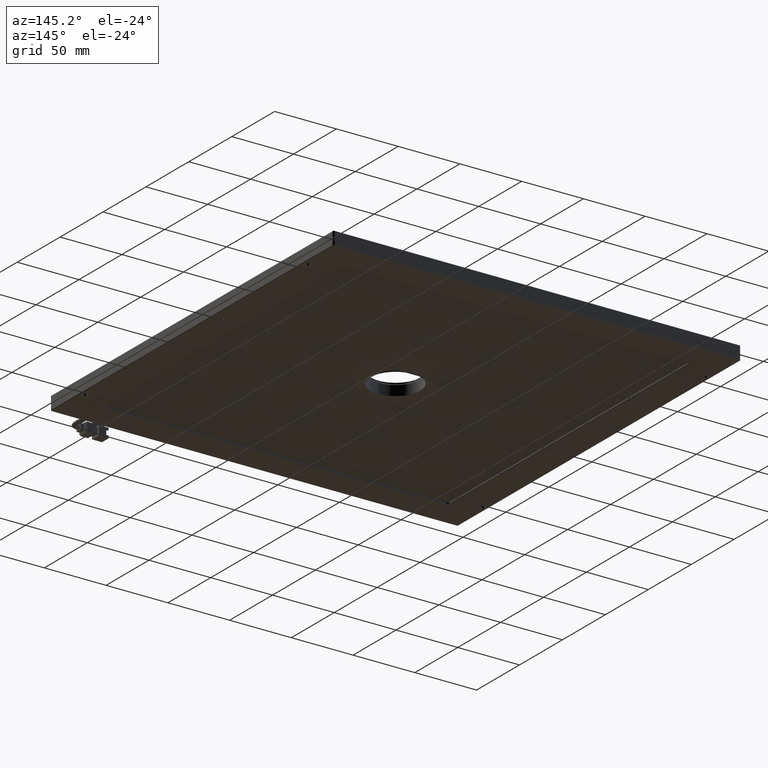
[diagram: clean part render]
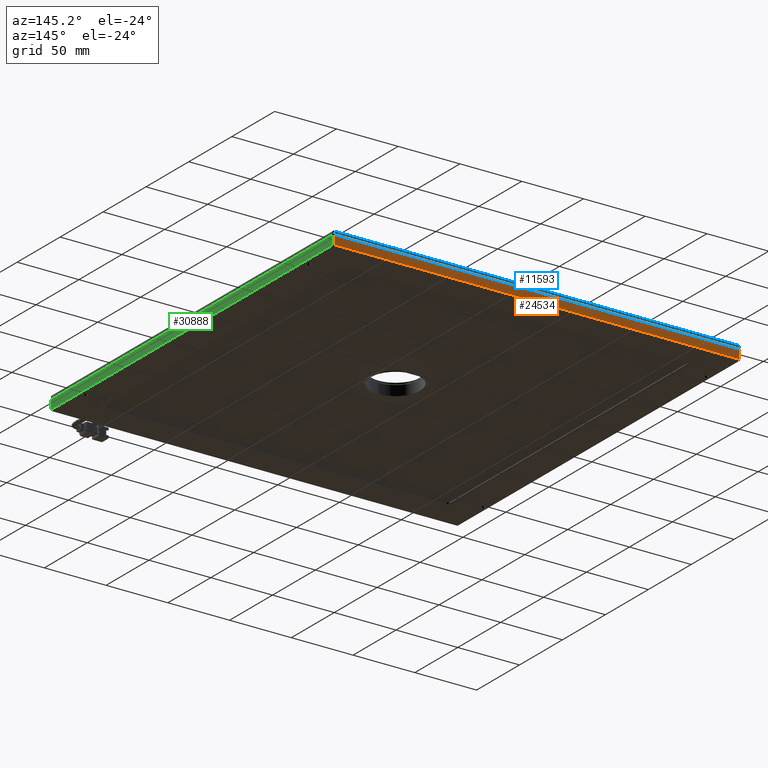
[diagram: same view with three faces highlighted in distinct colors, each labeled with its STEP entity id]
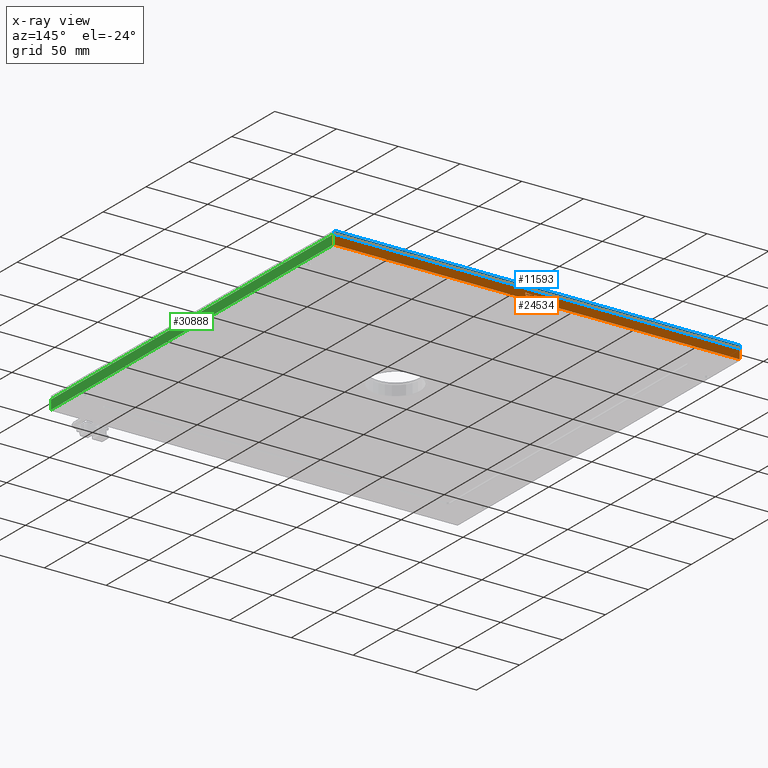
[diagram: x-ray of the same camera — body ghosted, the three highlighted faces saturated]
A machine part, auxiliary view with three faces highlighted in distinct colors.
The next image is the same camera in x-ray (body ghosted, the three faces saturated) — at least one of them is partly hidden behind the body in this view.
Their STEP definitions:

[orange] entity #24534 — the highlighted planar face has unit normal (-0, -1, 0).
#142 = CARTESIAN_POINT ( 'NONE',  ( -27.66461899704861000, 229.3065740479060500, 3.211284351497454300 ) ) ;
#203 = CARTESIAN_POINT ( 'NONE',  ( -35.15380233939582400, 229.3065740479060500, 3.183377374753274800 ) ) ;
#308 = VECTOR ( 'NONE', #2738, 1000.000000000000000 ) ;
#345 = LINE ( 'NONE', #31000, #20376 ) ;
#396 = VECTOR ( 'NONE', #28996, 1000.000000000000000 ) ;
#449 = VERTEX_POINT ( 'NONE', #31992 ) ;
#461 = CARTESIAN_POINT ( 'NONE',  ( -22.39706897000695200, 229.3065740479060500, 3.741516909636993600 ) ) ;
#469 = CARTESIAN_POINT ( 'NONE',  ( -25.77283965686474700, 229.3065740479060500, 2.932214584055601300 ) ) ;
#471 = ORIENTED_EDGE ( 'NONE', *, *, #6030, .F. ) ;
#548 = ORIENTED_EDGE ( 'NONE', *, *, #20862, .F. ) ;
#683 = CARTESIAN_POINT ( 'NONE',  ( -33.20123338320326700, 229.3065740479060500, 4.969423886381179900 ) ) ;
#691 = VECTOR ( 'NONE', #4333, 1000.000000000000000 ) ;
#740 = CARTESIAN_POINT ( 'NONE',  ( -34.03433235562077600, 229.3065740479060500, 4.085702956148617600 ) ) ;
#747 = CARTESIAN_POINT ( 'NONE',  ( -29.34817767741640200, 229.3065740479060500, 2.932214584055601300 ) ) ;
#754 = CARTESIAN_POINT ( 'NONE',  ( -32.76732316146188100, 229.3065740479060500, 2.932214584055601300 ) ) ;
#789 = CARTESIAN_POINT ( 'NONE',  ( -34.03433235562077600, 229.3065740479060500, 4.085702956148617600 ) ) ;
#936 = CARTESIAN_POINT ( 'NONE',  ( -25.36494349677828100, 229.3065740479060500, 4.932214584055595100 ) ) ;
#973 = VERTEX_POINT ( 'NONE', #7628 ) ;
#1001 = CARTESIAN_POINT ( 'NONE',  ( -34.69387805599940600, 229.3065740479060500, 4.392679700334664300 ) ) ;
#1026 = CARTESIAN_POINT ( 'NONE',  ( -25.09306680667541300, 229.3065740479060500, 3.285702956148623500 ) ) ;
#1050 = CARTESIAN_POINT ( 'NONE',  ( -36.56110084048005100, 229.3065740479060500, 2.945645191833743400 ) ) ;
#1397 = EDGE_CURVE ( 'NONE', #15490, #2168, #29928, .T. ) ;
#1475 = CARTESIAN_POINT ( 'NONE',  ( -36.74600744371338800, 229.3065740479060500, 2.401841240074909800 ) ) ;
#1623 = ORIENTED_EDGE ( 'NONE', *, *, #15039, .F. ) ;
#1628 = VERTEX_POINT ( 'NONE', #28028 ) ;
#1631 = VERTEX_POINT ( 'NONE', #15655 ) ;
#1764 = CARTESIAN_POINT ( 'NONE',  ( -28.54114684994210200, 229.3065740479060500, 4.234540165450956000 ) ) ;
#1766 = FACE_BOUND ( 'NONE', #31656, .T. ) ;
#1792 = CARTESIAN_POINT ( 'NONE',  ( -25.77283965686474700, 229.3065740479060500, 4.932214584055595100 ) ) ;
#1824 = CARTESIAN_POINT ( 'NONE',  ( -31.43676610359271700, 229.3065740479060500, 4.591219451551535400 ) ) ;
#1857 = CARTESIAN_POINT ( 'NONE',  ( -24.20209871581560200, 229.3065740479060500, 3.192679700334672500 ) ) ;
#1898 = CARTESIAN_POINT ( 'NONE',  ( -26.01583587103458900, 229.3065740479060500, 3.211284351497454300 ) ) ;
#1912 = CARTESIAN_POINT ( 'NONE',  ( -32.89750163631301700, 229.3065740479060500, 4.712149684109680200 ) ) ;
#2009 = ORIENTED_EDGE ( 'NONE', *, *, #22199, .F. ) ;
#2085 = LINE ( 'NONE', #8555, #30959 ) ;
#2141 = B_SPLINE_CURVE_WITH_KNOTS ( 'NONE', 3,
 ( #15608, #5872, #18518, #21131 ),
 .UNSPECIFIED., .F., .F.,
 ( 4, 4 ),
 ( 2.000000000000000000, 3.000000000000000000 ),
 .UNSPECIFIED. ) ;
#2168 = VERTEX_POINT ( 'NONE', #10718 ) ;
#2247 = LINE ( 'NONE', #10609, #21515 ) ;
#2258 = VERTEX_POINT ( 'NONE', #9402 ) ;
#2323 = ORIENTED_EDGE ( 'NONE', *, *, #17018, .F. ) ;
#2346 = EDGE_CURVE ( 'NONE', #32174, #24066, #9610, .T. ) ;
#2526 = CARTESIAN_POINT ( 'NONE',  ( -22.41437562225142700, 229.3065740479060500, 4.095005281730015800 ) ) ;
#2541 = EDGE_CURVE ( 'NONE', #10937, #449, #25257, .T. ) ;
#2597 = CARTESIAN_POINT ( 'NONE',  ( -30.53709060332229400, 229.3065740479060500, 2.904307607311408000 ) ) ;
#2627 = VERTEX_POINT ( 'NONE', #29163 ) ;
#2646 = VERTEX_POINT ( 'NONE', #28724 ) ;
#2677 = CARTESIAN_POINT ( 'NONE',  ( -29.63757735291663700, 229.3065740479060500, 4.591219451551535400 ) ) ;
#2709 = CARTESIAN_POINT ( 'NONE',  ( -30.53709060332229400, 229.3065740479060500, 2.904307607311408000 ) ) ;
#2738 = DIRECTION ( 'NONE',  ( -0.0000000000000000000, -0.0000000000000000000, -1.000000000000000000 ) ) ;
#2791 = CARTESIAN_POINT ( 'NONE',  ( -23.15201759088311200, 229.3065740479060500, 3.453144816613735700 ) ) ;
#2797 = CARTESIAN_POINT ( 'NONE',  ( -25.12194728260843800, 229.3065740479060500, 3.936865746846293300 ) ) ;
#2805 = VERTEX_POINT ( 'NONE', #6594 ) ;
#2897 = CARTESIAN_POINT ( 'NONE',  ( -35.66580882939054200, 229.3065740479060500, 3.936865746846293300 ) ) ;
#2915 = EDGE_CURVE ( 'NONE', #28976, #10937, #25619, .T. ) ;
#2950 = ORIENTED_EDGE ( 'NONE', *, *, #23956, .F. ) ;
#2952 = DIRECTION ( 'NONE',  ( -0.0000000000000000000, -0.0000000000000000000, -1.000000000000000000 ) ) ;
#2972 = VERTEX_POINT ( 'NONE', #28096 ) ;
#3054 = B_SPLINE_CURVE_WITH_KNOTS ( 'NONE', 3,
 ( #20915, #18418, #31421, #13288 ),
 .UNSPECIFIED., .F., .F.,
 ( 4, 4 ),
 ( 6.000000000000000000, 7.000000000000000000 ),
 .UNSPECIFIED. ) ;
#3063 = ORIENTED_EDGE ( 'NONE', *, *, #13965, .F. ) ;
#3071 = CARTESIAN_POINT ( 'NONE',  ( -37.10488303373689700, 229.3065740479060500, 2.401841240074909800 ) ) ;
#3094 = VERTEX_POINT ( 'NONE', #15849 ) ;
#3122 = CARTESIAN_POINT ( 'NONE',  ( -22.45780450272735300, 229.3065740479060500, 4.708958770102109200 ) ) ;
#3189 = DIRECTION ( 'NONE',  ( 1.000000000000000000, -0.0000000000000000000, -0.0000000000000000000 ) ) ;
#3265 = EDGE_CURVE ( 'NONE', #18468, #13282, #17894, .T. ) ;
#3283 = CARTESIAN_POINT ( 'NONE',  ( -23.19544647135898400, 229.3065740479060500, 4.597330863125376000 ) ) ;
#3341 = EDGE_CURVE ( 'NONE', #19734, #19242, #8765, .T. ) ;
#3366 = DIRECTION ( 'NONE',  ( 1.000000000000000000, -0.0000000000000000000, -0.0000000000000000000 ) ) ;
#3404 = VERTEX_POINT ( 'NONE', #18086 ) ;
#3542 = DIRECTION ( 'NONE',  ( -0.0000000000000000000, -0.0000000000000000000, 1.000000000000000000 ) ) ;
#3576 = DIRECTION ( 'NONE',  ( -0.0000000000000000000, -0.0000000000000000000, 1.000000000000000000 ) ) ;
#3634 = VERTEX_POINT ( 'NONE', #8992 ) ;
#3649 = DIRECTION ( 'NONE',  ( -0.0000000000000000000, -0.0000000000000000000, 1.000000000000000000 ) ) ;
#3691 = EDGE_CURVE ( 'NONE', #9464, #25490, #11371, .T. ) ;
#3743 = ORIENTED_EDGE ( 'NONE', *, *, #28853, .F. ) ;
#3753 = CARTESIAN_POINT ( 'NONE',  ( -22.14833992728123800, 229.3065740479060500, 3.310554227105899600 ) ) ;
#3946 = CARTESIAN_POINT ( 'NONE',  ( -27.04850217714596300, 229.3065740479060500, 3.211284351497454300 ) ) ;
#3978 = CARTESIAN_POINT ( 'NONE',  ( -24.21075204193775600, 229.3065740479060500, 4.969423886381179900 ) ) ;
#4071 = CARTESIAN_POINT ( 'NONE',  ( -28.08414306411196600, 229.3065740479060500, 2.932214584055601300 ) ) ;
#4078 = CARTESIAN_POINT ( 'NONE',  ( -22.39706897000695200, 229.3065740479060500, 4.969423886381179900 ) ) ;
#4150 = CARTESIAN_POINT ( 'NONE',  ( -34.41913495161865900, 229.3065740479060500, 4.820586677078848600 ) ) ;
#4154 = VERTEX_POINT ( 'NONE', #24020 ) ;
#4233 = EDGE_CURVE ( 'NONE', #23022, #11355, #18546, .T. ) ;
#4240 = VECTOR ( 'NONE', #5864, 1000.000000000000000 ) ;
#4267 = VERTEX_POINT ( 'NONE', #14248 ) ;
#4311 = B_SPLINE_CURVE_WITH_KNOTS ( 'NONE', 3,
 ( #7312, #7208, #12464, #30409 ),
 .UNSPECIFIED., .F., .F.,
 ( 4, 4 ),
 ( 3.000000000000000000, 4.000000000000000000 ),
 .UNSPECIFIED. ) ;
#4314 = CARTESIAN_POINT ( 'NONE',  ( -21.63335885643210700, 229.3065740479060500, 4.374075049171882900 ) ) ;
#4322 = CARTESIAN_POINT ( 'NONE',  ( -33.20123338320326700, 229.3065740479060500, 4.969423886381179900 ) ) ;
#4333 = DIRECTION ( 'NONE',  ( 1.000000000000000000, -0.0000000000000000000, -0.0000000000000000000 ) ) ;
#4337 = ORIENTED_EDGE ( 'NONE', *, *, #24037, .F. ) ;
#4469 = CARTESIAN_POINT ( 'NONE',  ( -32.32189319932007300, 229.3065740479060500, 4.699656444520725200 ) ) ;
#4521 = EDGE_CURVE ( 'NONE', #17753, #27381, #13283, .T. ) ;
#4533 = B_SPLINE_CURVE_WITH_KNOTS ( 'NONE', 3,
 ( #3978, #13954, #21806, #14060 ),
 .UNSPECIFIED., .F., .F.,
 ( 4, 4 ),
 ( 6.000000000000000000, 7.000000000000000000 ),
 .UNSPECIFIED. ) ;
#4635 = CARTESIAN_POINT ( 'NONE',  ( -22.17722040321404000, 229.3065740479060500, 4.138461203850081200 ) ) ;
#4741 = CARTESIAN_POINT ( 'NONE',  ( -39.35898879070583700, 229.3065740479060500, 2.401841240074909800 ) ) ;
#4758 = B_SPLINE_CURVE_WITH_KNOTS ( 'NONE', 3,
 ( #21327, #18706, #26598, #21214 ),
 .UNSPECIFIED., .F., .F.,
 ( 4, 4 ),
 ( 4.000000000000000000, 5.000000000000000000 ),
 .UNSPECIFIED. ) ;
#4779 = EDGE_CURVE ( 'NONE', #9897, #23821, #21696, .T. ) ;
#4786 = LINE ( 'NONE', #17994, #30419 ) ;
#4851 = CARTESIAN_POINT ( 'NONE',  ( -22.05861575205133800, 229.3065740479060500, 4.401982025916062500 ) ) ;
#4880 = VERTEX_POINT ( 'NONE', #28278 ) ;
#4947 = CARTESIAN_POINT ( 'NONE',  ( -196.2439076390645300, 229.3065740479060800, 8.000000000019099400 ) ) ;
#4948 = CARTESIAN_POINT ( 'NONE',  ( -33.19258005708110900, 229.3065740479060500, 4.699656444520725200 ) ) ;
#4972 = VERTEX_POINT ( 'NONE', #461 ) ;
#5000 = FACE_BOUND ( 'NONE', #30002, .T. ) ;
#5005 = CARTESIAN_POINT ( 'NONE',  ( -22.63719876989874900, 229.3065740479060500, 3.192679700334672500 ) ) ;
#5060 = EDGE_LOOP ( 'NONE', ( #4337, #30138, #19998, #25117 ) ) ;
#5082 = CARTESIAN_POINT ( 'NONE',  ( -21.63335885643210700, 229.3065740479060500, 4.374075049171882900 ) ) ;
#5146 = LINE ( 'NONE', #3946, #26711 ) ;
#5159 = CARTESIAN_POINT ( 'NONE',  ( -34.31205004085615700, 229.3065740479060500, 3.490354118939320600 ) ) ;
#5165 = DIRECTION ( 'NONE',  ( -1.000000000000000000, 1.682156097916903800E-016, -0.0000000000000000000 ) ) ;
#5234 = DIRECTION ( 'NONE',  ( 1.000000000000000000, -0.0000000000000000000, -0.0000000000000000000 ) ) ;
#5331 = VERTEX_POINT ( 'NONE', #2797 ) ;
#5336 = CARTESIAN_POINT ( 'NONE',  ( -22.05861575205133800, 229.3065740479060500, 4.401982025916062500 ) ) ;
#5385 = ORIENTED_EDGE ( 'NONE', *, *, #29193, .F. ) ;
#5406 = EDGE_CURVE ( 'NONE', #449, #6615, #30628, .T. ) ;
#5593 = CARTESIAN_POINT ( 'NONE',  ( -23.19544647135898400, 229.3065740479060500, 4.597330863125376000 ) ) ;
#5615 = B_SPLINE_CURVE_WITH_KNOTS ( 'NONE', 3,
 ( #6160, #24118, #32035, #8942 ),
 .UNSPECIFIED., .F., .F.,
 ( 4, 4 ),
 ( 4.000000000000000000, 5.000000000000000000 ),
 .UNSPECIFIED. ) ;
#5741 = VECTOR ( 'NONE', #31552, 1000.000000000000000 ) ;
#5798 = CARTESIAN_POINT ( 'NONE',  ( -22.98143889969869500, 229.3065740479060500, 4.547763529431477100 ) ) ;
#5864 = DIRECTION ( 'NONE',  ( -1.000000000000000000, -0.0000000000000000000, -0.0000000000000000000 ) ) ;
#5872 = CARTESIAN_POINT ( 'NONE',  ( -31.12719336157001800, 229.3065740479060500, 2.929158878268684600 ) ) ;
#6030 = EDGE_CURVE ( 'NONE', #1631, #17753, #32638, .T. ) ;
#6091 = DIRECTION ( 'NONE',  ( -0.0000000000000000000, -0.0000000000000000000, 1.000000000000000000 ) ) ;
#6160 = CARTESIAN_POINT ( 'NONE',  ( -34.69387805599940600, 229.3065740479060500, 4.392679700334664300 ) ) ;
#6182 = DIRECTION ( 'NONE',  ( -0.0000000000000000000, -0.0000000000000000000, 1.000000000000000000 ) ) ;
#6231 = VERTEX_POINT ( 'NONE', #469 ) ;
#6282 = EDGE_CURVE ( 'NONE', #30594, #1628, #28464, .T. ) ;
#6310 = CARTESIAN_POINT ( 'NONE',  ( -22.08462981370626100, 229.3065740479060500, 3.527563421264897900 ) ) ;
#6388 = LINE ( 'NONE', #18735, #396 ) ;
#6389 = CARTESIAN_POINT ( 'NONE',  ( -35.74974609277600000, 229.3065740479060500, 2.935405498063165600 ) ) ;
#6479 = ORIENTED_EDGE ( 'NONE', *, *, #27662, .F. ) ;
#6594 = CARTESIAN_POINT ( 'NONE',  ( -35.11908086833045000, 229.3065740479060500, 4.699656444520725200 ) ) ;
#6607 = DIRECTION ( 'NONE',  ( -0.0000000000000000000, -0.0000000000000000000, -1.000000000000000000 ) ) ;
#6615 = VERTEX_POINT ( 'NONE', #15396 ) ;
#6633 = CARTESIAN_POINT ( 'NONE',  ( -21.88219606573440900, 229.3065740479060500, 4.969423886381179900 ) ) ;
#6829 = CARTESIAN_POINT ( 'NONE',  ( -36.56110084048005100, 229.3065740479060500, 2.945645191833743400 ) ) ;
#6852 = EDGE_CURVE ( 'NONE', #31063, #23022, #4533, .T. ) ;
#6964 = CARTESIAN_POINT ( 'NONE',  ( -35.12773419445260700, 229.3065740479060500, 4.969423886381179900 ) ) ;
#6967 = CARTESIAN_POINT ( 'NONE',  ( -22.99879963523140700, 229.3065740479060500, 4.863907390978266900 ) ) ;
#6971 = FACE_OUTER_BOUND ( 'NONE', #5060, .T. ) ;
#7011 = CARTESIAN_POINT ( 'NONE',  ( -33.20123338320326700, 229.3065740479060500, 4.969423886381179900 ) ) ;
#7022 = CARTESIAN_POINT ( 'NONE',  ( -28.54114684994210200, 229.3065740479060500, 4.234540165450956000 ) ) ;
#7127 = VECTOR ( 'NONE', #10003, 1000.000000000000000 ) ;
#7142 = EDGE_CURVE ( 'NONE', #4154, #9464, #15141, .T. ) ;
#7159 = EDGE_CURVE ( 'NONE', #11355, #2972, #4758, .T. ) ;
#7164 = DIRECTION ( 'NONE',  ( -0.0000000000000000000, -0.0000000000000000000, -1.000000000000000000 ) ) ;
#7176 = CARTESIAN_POINT ( 'NONE',  ( -39.54384103202853900, 229.3065740479060500, 3.054396197041352700 ) ) ;
#7208 = CARTESIAN_POINT ( 'NONE',  ( -35.46618741240838800, 229.3065740479060500, 4.668693761989614700 ) ) ;
#7221 = CARTESIAN_POINT ( 'NONE',  ( -23.81156329126174100, 229.3065740479060500, 3.564772723590475600 ) ) ;
#7234 = EDGE_CURVE ( 'NONE', #18782, #25614, #5146, .T. ) ;
#7256 = CARTESIAN_POINT ( 'NONE',  ( -27.66461899704861000, 229.3065740479060500, 2.932214584055601300 ) ) ;
#7268 = CARTESIAN_POINT ( 'NONE',  ( -33.61778286941204600, 229.3065740479060500, 2.932214584055601300 ) ) ;
#7288 = EDGE_CURVE ( 'NONE', #2627, #8975, #29651, .T. ) ;
#7289 = B_SPLINE_CURVE_WITH_KNOTS ( 'NONE', 3,
 ( #21687, #16494, #3753, #6310 ),
 .UNSPECIFIED., .F., .F.,
 ( 4, 4 ),
 ( 8.000000000000000000, 9.000000000000000000 ),
 .UNSPECIFIED. ) ;
#7312 = CARTESIAN_POINT ( 'NONE',  ( -35.11908086833045000, 229.3065740479060500, 4.699656444520725200 ) ) ;
#7323 = CARTESIAN_POINT ( 'NONE',  ( -23.86948649299244400, 229.3065740479060500, 3.316800846900380700 ) ) ;
#7333 = CARTESIAN_POINT ( 'NONE',  ( -22.44044376719458700, 229.3065740479060500, 3.192679700334672500 ) ) ;
#7335 = EDGE_CURVE ( 'NONE', #20804, #7916, #26932, .T. ) ;
#7402 = CARTESIAN_POINT ( 'NONE',  ( -39.00000991305194000, 229.3065740479060500, 5.384581506973770400 ) ) ;
#7490 = DIRECTION ( 'NONE',  ( 1.000000000000000000, -1.682156097916903800E-016, 0.0000000000000000000 ) ) ;
#7502 = B_SPLINE_CURVE_WITH_KNOTS ( 'NONE', 3,
 ( #5082, #15359, #7503, #25366 ),
 .UNSPECIFIED., .F., .F.,
 ( 4, 4 ),
 ( 11.00000000000000000, 12.00000000000000000 ),
 .UNSPECIFIED. ) ;
#7503 = CARTESIAN_POINT ( 'NONE',  ( -21.88803706086697400, 229.3065740479060500, 3.847033405039920400 ) ) ;
#7569 = CARTESIAN_POINT ( 'NONE',  ( -30.53709060332229400, 229.3065740479060500, 4.969423886381179900 ) ) ;
#7628 = CARTESIAN_POINT ( 'NONE',  ( -23.15201759088311200, 229.3065740479060500, 3.453144816613735700 ) ) ;
#7675 = EDGE_CURVE ( 'NONE', #27110, #32174, #31242, .T. ) ;
#7679 = CARTESIAN_POINT ( 'NONE',  ( -36.74600744371338800, 229.3065740479060500, 5.384581506973770400 ) ) ;
#7688 = CARTESIAN_POINT ( 'NONE',  ( -22.44909709331690800, 229.3065740479060500, 2.904307607311408000 ) ) ;
#7753 = ORIENTED_EDGE ( 'NONE', *, *, #32001, .F. ) ;
#7842 = ORIENTED_EDGE ( 'NONE', *, *, #12700, .F. ) ;
#7916 = VERTEX_POINT ( 'NONE', #22178 ) ;
#7919 = EDGE_CURVE ( 'NONE', #2168, #4880, #27631, .T. ) ;
#8017 = CARTESIAN_POINT ( 'NONE',  ( -23.44709601165109400, 229.3065740479060500, 4.634540165450953700 ) ) ;
#8079 = EDGE_CURVE ( 'NONE', #7916, #3634, #10719, .T. ) ;
#8166 = CARTESIAN_POINT ( 'NONE',  ( -32.76732316146188100, 229.3065740479060500, 4.188028537543966800 ) ) ;
#8174 = EDGE_CURVE ( 'NONE', #27733, #13677, #22581, .T. ) ;
#8177 = B_SPLINE_CURVE_WITH_KNOTS ( 'NONE', 3,
 ( #1857, #32777, #7323, #7221 ),
 .UNSPECIFIED., .F., .F.,
 ( 4, 4 ),
 ( 1.000000000000000000, 2.000000000000000000 ),
 .UNSPECIFIED. ) ;
#8265 = CARTESIAN_POINT ( 'NONE',  ( -195.2439076390645300, 229.3065740479060800, 8.000000000019099400 ) ) ;
#8529 = CARTESIAN_POINT ( 'NONE',  ( -35.66580882939054200, 229.3065740479060500, 3.936865746846293300 ) ) ;
#8532 = EDGE_CURVE ( 'NONE', #8758, #10900, #15017, .T. ) ;
#8555 = CARTESIAN_POINT ( 'NONE',  ( -32.76732316146188100, 229.3065740479060500, 4.188028537543966800 ) ) ;
#8560 = VECTOR ( 'NONE', #28705, 1000.000000000000000 ) ;
#8567 = CARTESIAN_POINT ( 'NONE',  ( -32.35077367525309500, 229.3065740479060500, 2.932214584055601300 ) ) ;
#8575 = FACE_BOUND ( 'NONE', #9734, .T. ) ;
#8612 = CARTESIAN_POINT ( 'NONE',  ( -34.05169309115354500, 229.3065740479060500, 4.693545032946884600 ) ) ;
#8656 = CARTESIAN_POINT ( 'NONE',  ( -29.34817767741640200, 229.3065740479060500, 4.932214584055595100 ) ) ;
#8758 = VERTEX_POINT ( 'NONE', #8166 ) ;
#8765 = B_SPLINE_CURVE_WITH_KNOTS ( 'NONE', 3,
 ( #14946, #22734, #5005, #7333 ),
 .UNSPECIFIED., .F., .F.,
 ( 4, 4 ),
 ( 9.000000000000000000, 10.00000000000000000 ),
 .UNSPECIFIED. ) ;
#8801 = CARTESIAN_POINT ( 'NONE',  ( -22.05861575205133800, 229.3065740479060500, 4.401982025916062500 ) ) ;
#8861 = EDGE_CURVE ( 'NONE', #32086, #17981, #27915, .T. ) ;
#8878 = ORIENTED_EDGE ( 'NONE', *, *, #28030, .F. ) ;
#8912 = CARTESIAN_POINT ( 'NONE',  ( -34.80967037617251900, 229.3065740479060500, 3.285702956148623500 ) ) ;
#8942 = CARTESIAN_POINT ( 'NONE',  ( -35.11908086833045000, 229.3065740479060500, 4.699656444520725200 ) ) ;
#8975 = VERTEX_POINT ( 'NONE', #32662 ) ;
#8992 = CARTESIAN_POINT ( 'NONE',  ( -26.01583587103459300, 229.3065740479060500, 2.932214584055601300 ) ) ;
#9010 = EDGE_CURVE ( 'NONE', #2805, #16158, #4311, .T. ) ;
#9018 = ORIENTED_EDGE ( 'NONE', *, *, #6852, .F. ) ;
#9042 = CARTESIAN_POINT ( 'NONE',  ( -34.69387805599940600, 229.3065740479060500, 4.969423886381179900 ) ) ;
#9159 = CARTESIAN_POINT ( 'NONE',  ( -39.54384103202853900, 229.3065740479060500, 3.054396197041352700 ) ) ;
#9205 = VECTOR ( 'NONE', #32903, 1000.000000000000000 ) ;
#9293 = CARTESIAN_POINT ( 'NONE',  ( -21.62768011116441600, 229.3065740479060500, 4.770884135164301700 ) ) ;
#9402 = CARTESIAN_POINT ( 'NONE',  ( -34.69387805599940600, 229.3065740479060500, 4.057795979404438000 ) ) ;
#9437 = VERTEX_POINT ( 'NONE', #24811 ) ;
#9464 = VERTEX_POINT ( 'NONE', #5593 ) ;
#9534 = CARTESIAN_POINT ( 'NONE',  ( -30.53709060332229400, 229.3065740479060500, 4.969423886381179900 ) ) ;
#9540 = CARTESIAN_POINT ( 'NONE',  ( -32.35077367525309500, 229.3065740479060500, 4.067098304985836200 ) ) ;
#9607 = CARTESIAN_POINT ( 'NONE',  ( -27.86424041403076400, 229.3065740479060500, 3.583377374753271600 ) ) ;
#9610 = LINE ( 'NONE', #24597, #20077 ) ;
#9628 = B_SPLINE_CURVE_WITH_KNOTS ( 'NONE', 3,
 ( #32162, #32375, #21995, #17027 ),
 .UNSPECIFIED., .F., .F.,
 ( 4, 4 ),
 ( 10.00000000000000000, 11.00000000000000000 ),
 .UNSPECIFIED. ) ;
#9688 = CARTESIAN_POINT ( 'NONE',  ( 132.7560923609355000, 229.3065740479060300, 8.000000000019099400 ) ) ;
#9734 = EDGE_LOOP ( 'NONE', ( #471, #32513, #12282, #10891 ) ) ;
#9790 = DIRECTION ( 'NONE',  ( 1.000000000000000000, -0.0000000000000000000, -0.0000000000000000000 ) ) ;
#9841 = CARTESIAN_POINT ( 'NONE',  ( 132.7560923609354400, 229.3065740479060300, 0.5000000000190766300 ) ) ;
#9862 = B_SPLINE_CURVE_WITH_KNOTS ( 'NONE', 3,
 ( #6829, #27062, #1475, #17141 ),
 .UNSPECIFIED., .F., .F.,
 ( 4, 4 ),
 ( 3.000000000000000000, 4.000000000000000000 ),
 .UNSPECIFIED. ) ;
#9897 = VERTEX_POINT ( 'NONE', #26770 ) ;
#9909 = CARTESIAN_POINT ( 'NONE',  ( -33.19258005708110900, 229.3065740479060500, 4.699656444520725200 ) ) ;
#9959 = PLANE ( 'NONE',  #32546 ) ;
#9999 = ORIENTED_EDGE ( 'NONE', *, *, #24531, .F. ) ;
#10003 = DIRECTION ( 'NONE',  ( -0.0000000000000000000, -0.0000000000000000000, 1.000000000000000000 ) ) ;
#10080 = B_SPLINE_CURVE_WITH_KNOTS ( 'NONE', 3,
 ( #10916, #31172, #23716, #26505 ),
 .UNSPECIFIED., .F., .F.,
 ( 4, 4 ),
 ( 4.000000000000000000, 5.000000000000000000 ),
 .UNSPECIFIED. ) ;
#10194 = CARTESIAN_POINT ( 'NONE',  ( -33.47608465416059400, 229.3065740479060500, 4.699656444520725200 ) ) ;
#10213 = CARTESIAN_POINT ( 'NONE',  ( -24.68517064658895100, 229.3065740479060500, 4.426833296873339500 ) ) ;
#10223 = VERTEX_POINT ( 'NONE', #17075 ) ;
#10269 = CARTESIAN_POINT ( 'NONE',  ( -36.56110084048005100, 229.3065740479060500, 5.199702080025288000 ) ) ;
#10274 = CARTESIAN_POINT ( 'NONE',  ( -29.94698784507457000, 229.3065740479060500, 4.932214584055595100 ) ) ;
#10379 = DIRECTION ( 'NONE',  ( 1.000000000000000000, -8.410780489583583600E-017, 8.410780489584520400E-017 ) ) ;
#10419 = VERTEX_POINT ( 'NONE', #5159 ) ;
#10484 = CARTESIAN_POINT ( 'NONE',  ( -32.35077367525309500, 229.3065740479060500, 2.932214584055601300 ) ) ;
#10489 = CARTESIAN_POINT ( 'NONE',  ( -35.47786940267324200, 229.3065740479060500, 3.214475265505025700 ) ) ;
#10609 = CARTESIAN_POINT ( 'NONE',  ( -196.2439076390645300, 229.3065740479060800, 0.5000000000190463200 ) ) ;
#10687 = CARTESIAN_POINT ( 'NONE',  ( -28.54114684994210200, 229.3065740479060500, 4.234540165450956000 ) ) ;
#10718 = CARTESIAN_POINT ( 'NONE',  ( -33.61778286941204600, 229.3065740479060500, 2.932214584055601300 ) ) ;
#10719 = LINE ( 'NONE', #18067, #308 ) ;
#10756 = LINE ( 'NONE', #1001, #12769 ) ;
#10847 = CARTESIAN_POINT ( 'NONE',  ( -35.15380233939582400, 229.3065740479060500, 3.183377374753274800 ) ) ;
#10891 = ORIENTED_EDGE ( 'NONE', *, *, #4521, .F. ) ;
#10900 = VERTEX_POINT ( 'NONE', #9909 ) ;
#10916 = CARTESIAN_POINT ( 'NONE',  ( -23.15201759088311200, 229.3065740479060500, 3.453144816613735700 ) ) ;
#10937 = VERTEX_POINT ( 'NONE', #23623 ) ;
#10964 = LINE ( 'NONE', #24224, #5741 ) ;
#11015 = EDGE_CURVE ( 'NONE', #4880, #20544, #19011, .T. ) ;
#11018 = ORIENTED_EDGE ( 'NONE', *, *, #7159, .F. ) ;
#11030 = VECTOR ( 'NONE', #3366, 1000.000000000000000 ) ;
#11052 = VECTOR ( 'NONE', #3189, 1000.000000000000000 ) ;
#11162 = DIRECTION ( 'NONE',  ( -0.0000000000000000000, -0.0000000000000000000, -1.000000000000000000 ) ) ;
#11194 = VERTEX_POINT ( 'NONE', #4322 ) ;
#11312 = LINE ( 'NONE', #17791, #24551 ) ;
#11355 = VERTEX_POINT ( 'NONE', #21668 ) ;
#11371 = B_SPLINE_CURVE_WITH_KNOTS ( 'NONE', 3,
 ( #27527, #6967, #24830, #24720 ),
 .UNSPECIFIED., .F., .F.,
 ( 4, 4 ),
 ( 13.00000000000000000, 14.00000000000000000 ),
 .UNSPECIFIED. ) ;
#11411 = CARTESIAN_POINT ( 'NONE',  ( -22.19744755302479800, 229.3065740479060500, 4.708958770102109200 ) ) ;
#11442 = VERTEX_POINT ( 'NONE', #17678 ) ;
#11491 = EDGE_CURVE ( 'NONE', #2646, #8758, #2085, .T. ) ;
#11542 = CARTESIAN_POINT ( 'NONE',  ( -34.69387805599940600, 229.3065740479060500, 4.392679700334664300 ) ) ;
#11612 = CARTESIAN_POINT ( 'NONE',  ( -39.00000991305194000, 229.3065740479060500, 5.384581506973770400 ) ) ;
#11637 = CARTESIAN_POINT ( 'NONE',  ( -21.68544106303024300, 229.3065740479060500, 3.527563421264897900 ) ) ;
#11659 = CARTESIAN_POINT ( 'NONE',  ( -36.05931883479881600, 229.3065740479060500, 3.276400630567225700 ) ) ;
#11784 = EDGE_LOOP ( 'NONE', ( #21662, #32543, #30605, #32817, #17756, #22628, #18911, #29169 ) ) ;
#11811 = FACE_BOUND ( 'NONE', #25402, .T. ) ;
#11879 = EDGE_CURVE ( 'NONE', #26571, #18782, #28123, .T. ) ;
#11963 = VECTOR ( 'NONE', #24663, 1000.000000000000000 ) ;
#12018 = ORIENTED_EDGE ( 'NONE', *, *, #24721, .F. ) ;
#12028 = EDGE_CURVE ( 'NONE', #2972, #3404, #22355, .T. ) ;
#12073 = ORIENTED_EDGE ( 'NONE', *, *, #25528, .F. ) ;
#12203 = CARTESIAN_POINT ( 'NONE',  ( -26.63195269093723600, 229.3065740479060500, 3.211284351497454300 ) ) ;
#12274 = VERTEX_POINT ( 'NONE', #11542 ) ;
#12282 = ORIENTED_EDGE ( 'NONE', *, *, #26241, .F. ) ;
#12318 = CARTESIAN_POINT ( 'NONE',  ( -21.63335885643210700, 229.3065740479060500, 4.374075049171882900 ) ) ;
#12342 = VECTOR ( 'NONE', #12600, 1000.000000000000000 ) ;
#12437 = VECTOR ( 'NONE', #6091, 1000.000000000000000 ) ;
#12442 = B_SPLINE_CURVE_WITH_KNOTS ( 'NONE', 3,
 ( #2897, #31103, #10489, #203 ),
 .UNSPECIFIED., .F., .F.,
 ( 4, 4 ),
 ( 2.000000000000000000, 3.000000000000000000 ),
 .UNSPECIFIED. ) ;
#12450 = EDGE_LOOP ( 'NONE', ( #27063, #29330, #32707, #23660, #22223, #9999, #18705, #14153, #7753, #18434, #23074, #28990, #20614, #2009 ) ) ;
#12453 = CARTESIAN_POINT ( 'NONE',  ( -30.53709060332229400, 229.3065740479060500, 4.969423886381179900 ) ) ;
#12464 = CARTESIAN_POINT ( 'NONE',  ( -35.64844809385777300, 229.3065740479060500, 4.414475265505037900 ) ) ;
#12504 = EDGE_CURVE ( 'NONE', #11442, #9437, #15227, .T. ) ;
#12544 = CARTESIAN_POINT ( 'NONE',  ( -39.54384103202853900, 229.3065740479060500, 2.695493416995830200 ) ) ;
#12553 = EDGE_CURVE ( 'NONE', #21461, #4154, #19975, .T. ) ;
#12587 = EDGE_CURVE ( 'NONE', #25614, #25382, #345, .T. ) ;
#12600 = DIRECTION ( 'NONE',  ( -1.000000000000000000, -0.0000000000000000000, -0.0000000000000000000 ) ) ;
#12675 = B_SPLINE_CURVE_WITH_KNOTS ( 'NONE', 3,
 ( #20319, #4741, #12544, #7176 ),
 .UNSPECIFIED., .F., .F.,
 ( 4, 4 ),
 ( 1.000000000000000000, 2.000000000000000000 ),
 .UNSPECIFIED. ) ;
#12679 = ORIENTED_EDGE ( 'NONE', *, *, #7335, .F. ) ;
#12700 = EDGE_CURVE ( 'NONE', #13282, #2646, #21186, .T. ) ;
#12769 = VECTOR ( 'NONE', #3576, 1000.000000000000000 ) ;
#12934 = CARTESIAN_POINT ( 'NONE',  ( -27.04850217714596300, 229.3065740479060500, 3.211284351497454300 ) ) ;
#12948 = ORIENTED_EDGE ( 'NONE', *, *, #11879, .F. ) ;
#12959 = CARTESIAN_POINT ( 'NONE',  ( -29.34817767741640200, 229.3065740479060500, 4.932214584055595100 ) ) ;
#12981 = CARTESIAN_POINT ( 'NONE',  ( -22.90036805059105900, 229.3065740479060500, 2.910554227105902800 ) ) ;
#12989 = ORIENTED_EDGE ( 'NONE', *, *, #8079, .F. ) ;
#13203 = CARTESIAN_POINT ( 'NONE',  ( -35.24925934318159200, 229.3065740479060500, 4.057795979404438000 ) ) ;
#13210 = DIRECTION ( 'NONE',  ( -0.0000000000000000000, -0.0000000000000000000, -1.000000000000000000 ) ) ;
#13282 = VERTEX_POINT ( 'NONE', #10484 ) ;
#13283 = B_SPLINE_CURVE_WITH_KNOTS ( 'NONE', 3,
 ( #7569, #10274, #2677, #33252 ),
 .UNSPECIFIED., .F., .F.,
 ( 4, 4 ),
 ( 0.0000000000000000000, 1.000000000000000000 ),
 .UNSPECIFIED. ) ;
#13288 = CARTESIAN_POINT ( 'NONE',  ( -22.44909709331690800, 229.3065740479060500, 2.904307607311408000 ) ) ;
#13365 = EDGE_CURVE ( 'NONE', #24335, #27110, #4786, .T. ) ;
#13370 = EDGE_CURVE ( 'NONE', #10419, #19477, #30495, .T. ) ;
#13447 = VERTEX_POINT ( 'NONE', #31447 ) ;
#13511 = VERTEX_POINT ( 'NONE', #29353 ) ;
#13578 = B_SPLINE_CURVE_WITH_KNOTS ( 'NONE', 3,
 ( #31032, #23231, #20525, #2597 ),
 .UNSPECIFIED., .F., .F.,
 ( 4, 4 ),
 ( 3.000000000000000000, 4.000000000000000000 ),
 .UNSPECIFIED. ) ;
#13611 = EDGE_CURVE ( 'NONE', #22195, #11442, #25955, .T. ) ;
#13613 = CARTESIAN_POINT ( 'NONE',  ( -28.94033560061812000, 229.3065740479060500, 4.932214584055595100 ) ) ;
#13621 = LINE ( 'NONE', #15185, #22861 ) ;
#13677 = VERTEX_POINT ( 'NONE', #19899 ) ;
#13687 = CARTESIAN_POINT ( 'NONE',  ( -24.79517605491773600, 229.3065740479060500, 2.941516909636999500 ) ) ;
#13805 = B_SPLINE_CURVE_WITH_KNOTS ( 'NONE', 3,
 ( #22786, #4635, #22568, #4851 ),
 .UNSPECIFIED., .F., .F.,
 ( 4, 4 ),
 ( 3.000000000000000000, 4.000000000000000000 ),
 .UNSPECIFIED. ) ;
#13852 = EDGE_CURVE ( 'NONE', #5331, #31063, #32197, .T. ) ;
#13870 = LINE ( 'NONE', #14896, #32279 ) ;
#13895 = ORIENTED_EDGE ( 'NONE', *, *, #19102, .F. ) ;
#13929 = CARTESIAN_POINT ( 'NONE',  ( -34.30334263144565200, 229.3065740479060500, 3.778726211962571300 ) ) ;
#13954 = CARTESIAN_POINT ( 'NONE',  ( -23.86948649299244400, 229.3065740479060500, 4.969423886381179900 ) ) ;
#13965 = EDGE_CURVE ( 'NONE', #14980, #6231, #32289, .T. ) ;
#13975 = LINE ( 'NONE', #27872, #7127 ) ;
#14060 = CARTESIAN_POINT ( 'NONE',  ( -23.44709601165109400, 229.3065740479060500, 4.634540165450953700 ) ) ;
#14112 = EDGE_CURVE ( 'NONE', #25490, #20260, #22796, .T. ) ;
#14153 = ORIENTED_EDGE ( 'NONE', *, *, #22932, .F. ) ;
#14192 = ORIENTED_EDGE ( 'NONE', *, *, #24814, .F. ) ;
#14248 = CARTESIAN_POINT ( 'NONE',  ( -22.44909709331690800, 229.3065740479060500, 2.904307607311408000 ) ) ;
#14389 = LINE ( 'NONE', #747, #20017 ) ;
#14456 = CARTESIAN_POINT ( 'NONE',  ( -23.77116307492857300, 229.3065740479060500, 2.910554227105902800 ) ) ;
#14574 = ORIENTED_EDGE ( 'NONE', *, *, #24916, .F. ) ;
#14663 = CARTESIAN_POINT ( 'NONE',  ( -36.08235831559927200, 229.3065740479060500, 3.927563421264895500 ) ) ;
#14696 = CARTESIAN_POINT ( 'NONE',  ( -31.46564657952562900, 229.3065740479060500, 3.946168072427691500 ) ) ;
#14828 = LINE ( 'NONE', #1764, #9205 ) ;
#14830 = CARTESIAN_POINT ( 'NONE',  ( -32.60545187968784800, 229.3065740479060500, 5.000386568912276200 ) ) ;
#14896 = CARTESIAN_POINT ( 'NONE',  ( -34.31205004085615700, 229.3065740479060500, 3.490354118939320600 ) ) ;
#14941 = VERTEX_POINT ( 'NONE', #10847 ) ;
#14946 = CARTESIAN_POINT ( 'NONE',  ( -22.72681477855212200, 229.3065740479060500, 3.453144816613735700 ) ) ;
#14952 = ORIENTED_EDGE ( 'NONE', *, *, #8174, .F. ) ;
#14980 = VERTEX_POINT ( 'NONE', #16078 ) ;
#15017 = B_SPLINE_CURVE_WITH_KNOTS ( 'NONE', 3,
 ( #25139, #17258, #1912, #4948 ),
 .UNSPECIFIED., .F., .F.,
 ( 4, 4 ),
 ( 4.000000000000000000, 5.000000000000000000 ),
 .UNSPECIFIED. ) ;
#15039 = EDGE_CURVE ( 'NONE', #14941, #18507, #33069, .T. ) ;
#15048 = VECTOR ( 'NONE', #21866, 1000.000000000000000 ) ;
#15141 = LINE ( 'NONE', #3283, #17140 ) ;
#15185 = CARTESIAN_POINT ( 'NONE',  ( -39.00000991305193300, 229.3065740479060500, 2.401841240074909800 ) ) ;
#15227 = B_SPLINE_CURVE_WITH_KNOTS ( 'NONE', 3,
 ( #23086, #7679, #10269, #15428 ),
 .UNSPECIFIED., .F., .F.,
 ( 4, 4 ),
 ( 5.000000000000000000, 6.000000000000000000 ),
 .UNSPECIFIED. ) ;
#15343 = CARTESIAN_POINT ( 'NONE',  ( -33.61778286941204600, 229.3065740479060500, 4.529158878268687800 ) ) ;
#15359 = CARTESIAN_POINT ( 'NONE',  ( -21.63335885643210700, 229.3065740479060500, 4.057795979404438000 ) ) ;
#15396 = CARTESIAN_POINT ( 'NONE',  ( -195.2439076390645300, 229.3065740479060800, 0.5000000000190491000 ) ) ;
#15428 = CARTESIAN_POINT ( 'NONE',  ( -36.56110084048005100, 229.3065740479060500, 4.840772119023578800 ) ) ;
#15469 = ORIENTED_EDGE ( 'NONE', *, *, #27231, .F. ) ;
#15490 = VERTEX_POINT ( 'NONE', #23498 ) ;
#15532 = EDGE_CURVE ( 'NONE', #13447, #27851, #28521, .T. ) ;
#15539 = CARTESIAN_POINT ( 'NONE',  ( -23.13465685535040000, 229.3065740479060500, 3.093545032946888100 ) ) ;
#15598 = CARTESIAN_POINT ( 'NONE',  ( -27.85272067363056100, 229.3065740479060500, 4.029889002660258500 ) ) ;
#15608 = CARTESIAN_POINT ( 'NONE',  ( -30.53709060332229400, 229.3065740479060500, 2.904307607311408000 ) ) ;
#15655 = CARTESIAN_POINT ( 'NONE',  ( -31.46564657952562900, 229.3065740479060500, 3.946168072427691500 ) ) ;
#15720 = VERTEX_POINT ( 'NONE', #26842 ) ;
#15792 = CARTESIAN_POINT ( 'NONE',  ( -24.21075204193775600, 229.3065740479060500, 4.969423886381179900 ) ) ;
#15794 = ORIENTED_EDGE ( 'NONE', *, *, #6282, .F. ) ;
#15837 = CARTESIAN_POINT ( 'NONE',  ( -22.08462981370626100, 229.3065740479060500, 3.527563421264897900 ) ) ;
#15842 = ORIENTED_EDGE ( 'NONE', *, *, #24187, .F. ) ;
#15849 = CARTESIAN_POINT ( 'NONE',  ( -23.81156329126174100, 229.3065740479060500, 3.564772723590475600 ) ) ;
#15925 = CARTESIAN_POINT ( 'NONE',  ( -25.12194728260843800, 229.3065740479060500, 3.936865746846293300 ) ) ;
#15968 = DIRECTION ( 'NONE',  ( -0.0000000000000000000, -0.0000000000000000000, 1.000000000000000000 ) ) ;
#16076 = DIRECTION ( 'NONE',  ( -1.000000000000000000, -0.0000000000000000000, -0.0000000000000000000 ) ) ;
#16078 = CARTESIAN_POINT ( 'NONE',  ( -25.36494349677828500, 229.3065740479060500, 2.932214584055601300 ) ) ;
#16158 = VERTEX_POINT ( 'NONE', #8529 ) ;
#16174 = VERTEX_POINT ( 'NONE', #3071 ) ;
#16217 = CARTESIAN_POINT ( 'NONE',  ( -26.63195269093723600, 229.3065740479060500, 4.932214584055595100 ) ) ;
#16397 = VECTOR ( 'NONE', #21523, 1000.000000000000000 ) ;
#16494 = CARTESIAN_POINT ( 'NONE',  ( -22.26689049515581300, 229.3065740479060500, 3.198926320129153600 ) ) ;
#16542 = CARTESIAN_POINT ( 'NONE',  ( -39.35898879070583700, 229.3065740479060500, 5.384581506973770400 ) ) ;
#16562 = VECTOR ( 'NONE', #6607, 1000.000000000000000 ) ;
#16661 = CARTESIAN_POINT ( 'NONE',  ( -35.15380233939582400, 229.3065740479060500, 3.183377374753274800 ) ) ;
#16814 = CARTESIAN_POINT ( 'NONE',  ( -23.40366713117527900, 229.3065740479060500, 3.564772723590475600 ) ) ;
#16871 = ORIENTED_EDGE ( 'NONE', *, *, #31150, .F. ) ;
#17003 = FACE_BOUND ( 'NONE', #30997, .T. ) ;
#17018 = EDGE_CURVE ( 'NONE', #11194, #18468, #25152, .T. ) ;
#17027 = CARTESIAN_POINT ( 'NONE',  ( -22.72681477855212200, 229.3065740479060500, 3.453144816613735700 ) ) ;
#17075 = CARTESIAN_POINT ( 'NONE',  ( -39.54384103202853900, 229.3065740479060500, 4.840772119023578800 ) ) ;
#17140 = VECTOR ( 'NONE', #6182, 1000.000000000000000 ) ;
#17141 = CARTESIAN_POINT ( 'NONE',  ( -37.10488303373689700, 229.3065740479060500, 2.401841240074909800 ) ) ;
#17245 = DIRECTION ( 'NONE',  ( -0.0000000000000000000, -0.0000000000000000000, 1.000000000000000000 ) ) ;
#17250 = CARTESIAN_POINT ( 'NONE',  ( -27.85856166876318300, 229.3065740479060500, 3.149358986435261400 ) ) ;
#17258 = CARTESIAN_POINT ( 'NONE',  ( -32.75580342106162100, 229.3065740479060500, 4.541516909637002700 ) ) ;
#17397 = FACE_BOUND ( 'NONE', #12450, .T. ) ;
#17602 = B_SPLINE_CURVE_WITH_KNOTS ( 'NONE', 3,
 ( #8801, #32011, #11411, #18780 ),
 .UNSPECIFIED., .F., .F.,
 ( 4, 4 ),
 ( 2.000000000000000000, 3.000000000000000000 ),
 .UNSPECIFIED. ) ;
#17601 = LINE ( 'NONE', #29814, #22466 ) ;
#17678 = CARTESIAN_POINT ( 'NONE',  ( -37.10488303373689700, 229.3065740479060500, 5.384581506973770400 ) ) ;
#17753 = VERTEX_POINT ( 'NONE', #12453 ) ;
#17756 = ORIENTED_EDGE ( 'NONE', *, *, #27844, .F. ) ;
#17791 = CARTESIAN_POINT ( 'NONE',  ( -25.36494349677828100, 229.3065740479060500, 2.932214584055601300 ) ) ;
#17828 = B_SPLINE_CURVE_WITH_KNOTS ( 'NONE', 3,
 ( #7688, #12981, #15539, #2791 ),
 .UNSPECIFIED., .F., .F.,
 ( 4, 4 ),
 ( 5.000000000000000000, 6.000000000000000000 ),
 .UNSPECIFIED. ) ;
#17894 = LINE ( 'NONE', #8567, #21958 ) ;
#17916 = CARTESIAN_POINT ( 'NONE',  ( -33.61778286941204600, 229.3065740479060500, 4.188028537543966800 ) ) ;
#17934 = VECTOR ( 'NONE', #16076, 1000.000000000000000 ) ;
#17981 = VERTEX_POINT ( 'NONE', #21784 ) ;
#17994 = CARTESIAN_POINT ( 'NONE',  ( -34.30334263144565200, 229.3065740479060500, 3.778726211962571300 ) ) ;
#18005 = EDGE_CURVE ( 'NONE', #20553, #16174, #9862, .T. ) ;
#18067 = CARTESIAN_POINT ( 'NONE',  ( -26.01583587103458900, 229.3065740479060500, 2.932214584055601300 ) ) ;
#18086 = CARTESIAN_POINT ( 'NONE',  ( -24.69674447027739100, 229.3065740479060500, 3.955470398009089300 ) ) ;
#18183 = CARTESIAN_POINT ( 'NONE',  ( -28.07835615226763800, 229.3065740479060500, 4.247033405039918100 ) ) ;
#18418 = CARTESIAN_POINT ( 'NONE',  ( -21.75488400516109200, 229.3065740479060500, 3.124507715477984300 ) ) ;
#18434 = ORIENTED_EDGE ( 'NONE', *, *, #8861, .F. ) ;
#18468 = VERTEX_POINT ( 'NONE', #9540 ) ;
#18507 = VERTEX_POINT ( 'NONE', #19439 ) ;
#18511 = CARTESIAN_POINT ( 'NONE',  ( -23.40366713117527900, 229.3065740479060500, 3.564772723590475600 ) ) ;
#18518 = CARTESIAN_POINT ( 'NONE',  ( -31.43676610359271700, 229.3065740479060500, 3.276400630567225700 ) ) ;
#18523 = LINE ( 'NONE', #7256, #19712 ) ;
#18546 = LINE ( 'NONE', #32269, #16562 ) ;
#18705 = ORIENTED_EDGE ( 'NONE', *, *, #24123, .F. ) ;
#18706 = CARTESIAN_POINT ( 'NONE',  ( -23.64385101435525600, 229.3065740479060500, 4.563312474807355900 ) ) ;
#18735 = CARTESIAN_POINT ( 'NONE',  ( -26.63195269093723600, 229.3065740479060500, 3.211284351497454300 ) ) ;
#18780 = CARTESIAN_POINT ( 'NONE',  ( -22.45780450272735300, 229.3065740479060500, 4.708958770102109200 ) ) ;
#18782 = VERTEX_POINT ( 'NONE', #142 ) ;
#18886 = ORIENTED_EDGE ( 'NONE', *, *, #32478, .F. ) ;
#18911 = ORIENTED_EDGE ( 'NONE', *, *, #29443, .F. ) ;
#18932 = B_SPLINE_CURVE_WITH_KNOTS ( 'NONE', 3,
 ( #32830, #10194, #15343, #17916 ),
 .UNSPECIFIED., .F., .F.,
 ( 4, 4 ),
 ( 3.000000000000000000, 4.000000000000000000 ),
 .UNSPECIFIED. ) ;
#18980 = EDGE_CURVE ( 'NONE', #4972, #19734, #9628, .T. ) ;
#19011 = LINE ( 'NONE', #740, #22251 ) ;
#19086 = CARTESIAN_POINT ( 'NONE',  ( -34.30334263144565200, 229.3065740479060500, 4.522912258474207200 ) ) ;
#19102 = EDGE_CURVE ( 'NONE', #19477, #9897, #19533, .T. ) ;
#19242 = VERTEX_POINT ( 'NONE', #22869 ) ;
#19439 = CARTESIAN_POINT ( 'NONE',  ( -34.74590617930935800, 229.3065740479060500, 3.490354118939320600 ) ) ;
#19477 = VERTEX_POINT ( 'NONE', #26121 ) ;
#19533 = B_SPLINE_CURVE_WITH_KNOTS ( 'NONE', 3,
 ( #24465, #6389, #11659, #14663 ),
 .UNSPECIFIED., .F., .F.,
 ( 4, 4 ),
 ( 12.00000000000000000, 13.00000000000000000 ),
 .UNSPECIFIED. ) ;
#19537 = CARTESIAN_POINT ( 'NONE',  ( -31.12719336157001800, 229.3065740479060500, 4.932214584055595100 ) ) ;
#19574 = EDGE_CURVE ( 'NONE', #19939, #21461, #17602, .T. ) ;
#19584 = VECTOR ( 'NONE', #9790, 1000.000000000000000 ) ;
#19607 = ORIENTED_EDGE ( 'NONE', *, *, #12028, .F. ) ;
#19614 = EDGE_CURVE ( 'NONE', #2258, #12274, #10756, .T. ) ;
#19680 = ORIENTED_EDGE ( 'NONE', *, *, #19614, .F. ) ;
#19712 = VECTOR ( 'NONE', #27689, 1000.000000000000000 ) ;
#19724 = DIRECTION ( 'NONE',  ( -0.0000000000000000000, -0.0000000000000000000, 1.000000000000000000 ) ) ;
#19734 = VERTEX_POINT ( 'NONE', #33118 ) ;
#19736 = CARTESIAN_POINT ( 'NONE',  ( -35.74103868336555200, 229.3065740479060500, 4.944572615423902900 ) ) ;
#19803 = ORIENTED_EDGE ( 'NONE', *, *, #30804, .F. ) ;
#19899 = CARTESIAN_POINT ( 'NONE',  ( -27.86424041403076400, 229.3065740479060500, 3.583377374753271600 ) ) ;
#19910 = ORIENTED_EDGE ( 'NONE', *, *, #7675, .F. ) ;
#19937 = VERTEX_POINT ( 'NONE', #2526 ) ;
#19939 = VERTEX_POINT ( 'NONE', #5336 ) ;
#19975 = B_SPLINE_CURVE_WITH_KNOTS ( 'NONE', 3,
 ( #3122, #23643, #5798, #26336 ),
 .UNSPECIFIED., .F., .F.,
 ( 4, 4 ),
 ( 1.000000000000000000, 2.000000000000000000 ),
 .UNSPECIFIED. ) ;
#19996 = ORIENTED_EDGE ( 'NONE', *, *, #11491, .F. ) ;
#19998 = ORIENTED_EDGE ( 'NONE', *, *, #2541, .F. ) ;
#20017 = VECTOR ( 'NONE', #25891, 1000.000000000000000 ) ;
#20077 = VECTOR ( 'NONE', #19724, 1000.000000000000000 ) ;
#20160 = ORIENTED_EDGE ( 'NONE', *, *, #13852, .F. ) ;
#20228 = CARTESIAN_POINT ( 'NONE',  ( -27.66461899704861000, 229.3065740479060500, 3.211284351497454300 ) ) ;
#20260 = VERTEX_POINT ( 'NONE', #4314 ) ;
#20319 = CARTESIAN_POINT ( 'NONE',  ( -39.00000991305193300, 229.3065740479060500, 2.401841240074909800 ) ) ;
#20376 = VECTOR ( 'NONE', #15968, 1000.000000000000000 ) ;
#20402 = CARTESIAN_POINT ( 'NONE',  ( -24.20209871581560200, 229.3065740479060500, 3.192679700334672500 ) ) ;
#20484 = VERTEX_POINT ( 'NONE', #31513 ) ;
#20525 = CARTESIAN_POINT ( 'NONE',  ( -29.95861575205135500, 229.3065740479060500, 2.941516909636999500 ) ) ;
#20544 = VERTEX_POINT ( 'NONE', #31392 ) ;
#20553 = VERTEX_POINT ( 'NONE', #1050 ) ;
#20614 = ORIENTED_EDGE ( 'NONE', *, *, #18980, .F. ) ;
#20716 = CARTESIAN_POINT ( 'NONE',  ( -35.15380233939582400, 229.3065740479060500, 2.904307607311408000 ) ) ;
#20804 = VERTEX_POINT ( 'NONE', #12203 ) ;
#20828 = EDGE_CURVE ( 'NONE', #6231, #29031, #28203, .T. ) ;
#20862 = EDGE_CURVE ( 'NONE', #3404, #20484, #30067, .T. ) ;
#20915 = CARTESIAN_POINT ( 'NONE',  ( -21.68544106303024300, 229.3065740479060500, 3.527563421264897900 ) ) ;
#21101 = B_SPLINE_CURVE_WITH_KNOTS ( 'NONE', 3,
 ( #789, #8612, #31488, #683 ),
 .UNSPECIFIED., .F., .F.,
 ( 4, 4 ),
 ( 9.000000000000000000, 10.00000000000000000 ),
 .UNSPECIFIED. ) ;
#21131 = CARTESIAN_POINT ( 'NONE',  ( -31.46564657952562900, 229.3065740479060500, 3.946168072427691500 ) ) ;
#21174 = LINE ( 'NONE', #23629, #30388 ) ;
#21186 = LINE ( 'NONE', #754, #17934 ) ;
#21214 = CARTESIAN_POINT ( 'NONE',  ( -24.11529503815187400, 229.3065740479060500, 4.699656444520725200 ) ) ;
#21313 = CARTESIAN_POINT ( 'NONE',  ( -25.12194728260843800, 229.3065740479060500, 3.936865746846293300 ) ) ;
#21315 = VECTOR ( 'NONE', #25259, 1000.000000000000000 ) ;
#21327 = CARTESIAN_POINT ( 'NONE',  ( -23.44709601165109400, 229.3065740479060500, 4.253144816613738200 ) ) ;
#21442 = FACE_BOUND ( 'NONE', #23123, .T. ) ;
#21461 = VERTEX_POINT ( 'NONE', #29468 ) ;
#21515 = VECTOR ( 'NONE', #10379, 1000.000000000000000 ) ;
#21523 = DIRECTION ( 'NONE',  ( -1.000000000000000000, -0.0000000000000000000, -0.0000000000000000000 ) ) ;
#21580 = CARTESIAN_POINT ( 'NONE',  ( -25.77283965686474700, 229.3065740479060500, 2.932214584055601300 ) ) ;
#21644 = DIRECTION ( 'NONE',  ( 1.000000000000000000, -0.0000000000000000000, -0.0000000000000000000 ) ) ;
#21662 = ORIENTED_EDGE ( 'NONE', *, *, #13611, .F. ) ;
#21668 = CARTESIAN_POINT ( 'NONE',  ( -23.44709601165109400, 229.3065740479060500, 4.253144816613738200 ) ) ;
#21687 = CARTESIAN_POINT ( 'NONE',  ( -22.44044376719458700, 229.3065740479060500, 3.192679700334672500 ) ) ;
#21696 = B_SPLINE_CURVE_WITH_KNOTS ( 'NONE', 3,
 ( #27838, #32512, #19736, #6964 ),
 .UNSPECIFIED., .F., .F.,
 ( 4, 4 ),
 ( 11.00000000000000000, 12.00000000000000000 ),
 .UNSPECIFIED. ) ;
#21784 = CARTESIAN_POINT ( 'NONE',  ( -21.68544106303024300, 229.3065740479060500, 3.527563421264897900 ) ) ;
#21806 = CARTESIAN_POINT ( 'NONE',  ( -23.61497053842228800, 229.3065740479060500, 4.857795979404433400 ) ) ;
#21841 = CARTESIAN_POINT ( 'NONE',  ( -39.54384103202853900, 229.3065740479060500, 5.199702080025288000 ) ) ;
#21866 = DIRECTION ( 'NONE',  ( 1.000000000000000000, -0.0000000000000000000, -0.0000000000000000000 ) ) ;
#21958 = VECTOR ( 'NONE', #11162, 1000.000000000000000 ) ;
#21995 = CARTESIAN_POINT ( 'NONE',  ( -22.73849676881714300, 229.3065740479060500, 3.608228645710548100 ) ) ;
#22019 = ORIENTED_EDGE ( 'NONE', *, *, #29669, .F. ) ;
#22044 = ORIENTED_EDGE ( 'NONE', *, *, #2346, .F. ) ;
#22097 = ORIENTED_EDGE ( 'NONE', *, *, #7234, .F. ) ;
#22114 = CARTESIAN_POINT ( 'NONE',  ( -28.54114684994210200, 229.3065740479060500, 2.932214584055601300 ) ) ;
#22163 = CARTESIAN_POINT ( 'NONE',  ( -27.04850217714596300, 229.3065740479060500, 4.932214584055595100 ) ) ;
#22168 = CARTESIAN_POINT ( 'NONE',  ( -28.54114684994210200, 229.3065740479060500, 2.932214584055601300 ) ) ;
#22178 = CARTESIAN_POINT ( 'NONE',  ( -26.01583587103458900, 229.3065740479060500, 3.211284351497454300 ) ) ;
#22195 = VERTEX_POINT ( 'NONE', #7402 ) ;
#22199 = EDGE_CURVE ( 'NONE', #20260, #4972, #7502, .T. ) ;
#22223 = ORIENTED_EDGE ( 'NONE', *, *, #19574, .F. ) ;
#22251 = VECTOR ( 'NONE', #3649, 1000.000000000000000 ) ;
#22268 = EDGE_LOOP ( 'NONE', ( #13895, #33012, #19803, #1623, #2950, #27622, #14192, #19680, #14574, #22044, #19910, #24846, #28653, #27212 ) ) ;
#22355 = B_SPLINE_CURVE_WITH_KNOTS ( 'NONE', 3,
 ( #23028, #23476, #10213, #28164 ),
 .UNSPECIFIED., .F., .F.,
 ( 4, 4 ),
 ( 3.000000000000000000, 4.000000000000000000 ),
 .UNSPECIFIED. ) ;
#22444 = CARTESIAN_POINT ( 'NONE',  ( -24.69674447027739100, 229.3065740479060500, 3.955470398009089300 ) ) ;
#22465 = ORIENTED_EDGE ( 'NONE', *, *, #1397, .F. ) ;
#22466 = VECTOR ( 'NONE', #21644, 1000.000000000000000 ) ;
#22568 = CARTESIAN_POINT ( 'NONE',  ( -22.05861575205133800, 229.3065740479060500, 4.240786785245430400 ) ) ;
#22581 = B_SPLINE_CURVE_WITH_KNOTS ( 'NONE', 3,
 ( #10687, #18183, #15598, #23835 ),
 .UNSPECIFIED., .F., .F.,
 ( 4, 4 ),
 ( 6.000000000000000000, 7.000000000000000000 ),
 .UNSPECIFIED. ) ;
#22628 = ORIENTED_EDGE ( 'NONE', *, *, #18005, .F. ) ;
#22734 = CARTESIAN_POINT ( 'NONE',  ( -22.73265577368463000, 229.3065740479060500, 3.279591544574796700 ) ) ;
#22786 = CARTESIAN_POINT ( 'NONE',  ( -22.41437562225142700, 229.3065740479060500, 4.095005281730015800 ) ) ;
#22796 = B_SPLINE_CURVE_WITH_KNOTS ( 'NONE', 3,
 ( #4078, #6633, #9293, #12318 ),
 .UNSPECIFIED., .F., .F.,
 ( 4, 4 ),
 ( 12.00000000000000000, 13.00000000000000000 ),
 .UNSPECIFIED. ) ;
#22861 = VECTOR ( 'NONE', #33133, 1000.000000000000000 ) ;
#22869 = CARTESIAN_POINT ( 'NONE',  ( -22.44044376719458700, 229.3065740479060500, 3.192679700334672500 ) ) ;
#22879 = CARTESIAN_POINT ( 'NONE',  ( -24.69101164172140600, 229.3065740479060500, 3.459391436408223900 ) ) ;
#22895 = CARTESIAN_POINT ( 'NONE',  ( -196.2439076390645300, 229.3065740479060800, 8.000000000019099400 ) ) ;
#22932 = EDGE_CURVE ( 'NONE', #4267, #973, #17828, .T. ) ;
#23022 = VERTEX_POINT ( 'NONE', #8017 ) ;
#23028 = CARTESIAN_POINT ( 'NONE',  ( -24.11529503815187400, 229.3065740479060500, 4.699656444520725200 ) ) ;
#23074 = ORIENTED_EDGE ( 'NONE', *, *, #23750, .F. ) ;
#23086 = CARTESIAN_POINT ( 'NONE',  ( -37.10488303373689700, 229.3065740479060500, 5.384581506973770400 ) ) ;
#23109 = VECTOR ( 'NONE', #7164, 1000.000000000000000 ) ;
#23123 = EDGE_LOOP ( 'NONE', ( #3743, #14952, #6479, #15794, #29489, #25766, #8878 ) ) ;
#23189 = DIRECTION ( 'NONE',  ( -0.0000000000000000000, -0.0000000000000000000, -1.000000000000000000 ) ) ;
#23231 = CARTESIAN_POINT ( 'NONE',  ( -29.64909709331677900, 229.3065740479060500, 3.288893870156194500 ) ) ;
#23380 = CARTESIAN_POINT ( 'NONE',  ( -25.09306680667541300, 229.3065740479060500, 4.594275157338459300 ) ) ;
#23397 = EDGE_CURVE ( 'NONE', #27851, #30594, #24826, .T. ) ;
#23460 = EDGE_CURVE ( 'NONE', #29471, #10223, #13975, .T. ) ;
#23476 = CARTESIAN_POINT ( 'NONE',  ( -24.49144430802754600, 229.3065740479060500, 4.674940381784102400 ) ) ;
#23498 = CARTESIAN_POINT ( 'NONE',  ( -33.61778286941204600, 229.3065740479060500, 4.188028537543966800 ) ) ;
#23622 = EDGE_CURVE ( 'NONE', #24611, #1631, #2141, .T. ) ;
#23623 = CARTESIAN_POINT ( 'NONE',  ( 132.7560923609354400, 229.3065740479060300, 8.000000000019099400 ) ) ;
#23628 = ORIENTED_EDGE ( 'NONE', *, *, #12587, .F. ) ;
#23629 = CARTESIAN_POINT ( 'NONE',  ( -25.36494349677828100, 229.3065740479060500, 4.932214584055595100 ) ) ;
#23643 = CARTESIAN_POINT ( 'NONE',  ( -22.73546810467438600, 229.3065740479060500, 4.702847358528282000 ) ) ;
#23660 = ORIENTED_EDGE ( 'NONE', *, *, #12553, .F. ) ;
#23685 = B_SPLINE_CURVE_WITH_KNOTS ( 'NONE', 3,
 ( #31896, #21841, #16542, #11612 ),
 .UNSPECIFIED., .F., .F.,
 ( 4, 4 ),
 ( 7.000000000000000000, 8.000000000000000000 ),
 .UNSPECIFIED. ) ;
#23716 = CARTESIAN_POINT ( 'NONE',  ( -22.94677151192161800, 229.3065740479060500, 4.001982025916064800 ) ) ;
#23727 = ORIENTED_EDGE ( 'NONE', *, *, #7288, .F. ) ;
#23750 = EDGE_CURVE ( 'NONE', #19242, #32086, #7289, .T. ) ;
#23821 = VERTEX_POINT ( 'NONE', #24608 ) ;
#23835 = CARTESIAN_POINT ( 'NONE',  ( -27.86424041403076400, 229.3065740479060500, 3.583377374753271600 ) ) ;
#23956 = EDGE_CURVE ( 'NONE', #16158, #14941, #12442, .T. ) ;
#24020 = CARTESIAN_POINT ( 'NONE',  ( -23.19544647135898400, 229.3065740479060500, 4.243842491032340000 ) ) ;
#24037 = EDGE_CURVE ( 'NONE', #6615, #28976, #2247, .T. ) ;
#24066 = VERTEX_POINT ( 'NONE', #13203 ) ;
#24118 = CARTESIAN_POINT ( 'NONE',  ( -34.75758816957426900, 229.3065740479060500, 4.603577482919850400 ) ) ;
#24123 = EDGE_CURVE ( 'NONE', #973, #19937, #10080, .T. ) ;
#24187 = EDGE_CURVE ( 'NONE', #3094, #2627, #27123, .T. ) ;
#24224 = CARTESIAN_POINT ( 'NONE',  ( -36.56110084048005100, 229.3065740479060500, 2.945645191833743400 ) ) ;
#24321 = CARTESIAN_POINT ( 'NONE',  ( -35.24925934318159200, 229.3065740479060500, 3.778726211962571300 ) ) ;
#24335 = VERTEX_POINT ( 'NONE', #19086 ) ;
#24340 = CARTESIAN_POINT ( 'NONE',  ( -34.30334263144565200, 229.3065740479060500, 4.522912258474207200 ) ) ;
#24409 = ORIENTED_EDGE ( 'NONE', *, *, #7919, .F. ) ;
#24455 = EDGE_CURVE ( 'NONE', #13511, #29471, #12675, .T. ) ;
#24465 = CARTESIAN_POINT ( 'NONE',  ( -35.15380233939582400, 229.3065740479060500, 2.904307607311408000 ) ) ;
#24466 = DIRECTION ( 'NONE',  ( 1.000000000000000000, -0.0000000000000000000, -0.0000000000000000000 ) ) ;
#24531 = EDGE_CURVE ( 'NONE', #19937, #19939, #13805, .T. ) ;
#24534 = ADVANCED_FACE ( 'NONE', ( #1766, #11811, #17397, #29078, #17003, #21442, #8575, #5000, #24667, #6971 ), #9959, .F. ) ;
#24551 = VECTOR ( 'NONE', #13210, 1000.000000000000000 ) ;
#24597 = CARTESIAN_POINT ( 'NONE',  ( -35.24925934318159200, 229.3065740479060500, 4.057795979404438000 ) ) ;
#24608 = CARTESIAN_POINT ( 'NONE',  ( -35.12773419445260700, 229.3065740479060500, 4.969423886381179900 ) ) ;
#24611 = VERTEX_POINT ( 'NONE', #2709 ) ;
#24663 = DIRECTION ( 'NONE',  ( 0.0000000000000000000, 0.0000000000000000000, 1.000000000000000000 ) ) ;
#24667 = FACE_BOUND ( 'NONE', #22268, .T. ) ;
#24671 = CARTESIAN_POINT ( 'NONE',  ( -27.66461899704861000, 229.3065740479060500, 2.932214584055601300 ) ) ;
#24688 = CARTESIAN_POINT ( 'NONE',  ( -23.49631180397123800, 229.3065740479060500, 3.130754335272472500 ) ) ;
#24720 = CARTESIAN_POINT ( 'NONE',  ( -22.39706897000695200, 229.3065740479060500, 4.969423886381179900 ) ) ;
#24721 = EDGE_CURVE ( 'NONE', #20544, #11194, #21101, .T. ) ;
#24811 = CARTESIAN_POINT ( 'NONE',  ( -36.56110084048005100, 229.3065740479060500, 4.840772119023578800 ) ) ;
#24814 = EDGE_CURVE ( 'NONE', #12274, #2805, #5615, .T. ) ;
#24826 = LINE ( 'NONE', #27656, #19584 ) ;
#24830 = CARTESIAN_POINT ( 'NONE',  ( -22.73265577368463000, 229.3065740479060500, 4.988028537543968400 ) ) ;
#24846 = ORIENTED_EDGE ( 'NONE', *, *, #13365, .F. ) ;
#24869 = CARTESIAN_POINT ( 'NONE',  ( -32.35077367525309500, 229.3065740479060500, 4.067098304985836200 ) ) ;
#24916 = EDGE_CURVE ( 'NONE', #24066, #2258, #17601, .T. ) ;
#25001 = ORIENTED_EDGE ( 'NONE', *, *, #8532, .F. ) ;
#25117 = ORIENTED_EDGE ( 'NONE', *, *, #2915, .F. ) ;
#25139 = CARTESIAN_POINT ( 'NONE',  ( -32.76732316146188100, 229.3065740479060500, 4.188028537543966800 ) ) ;
#25152 = B_SPLINE_CURVE_WITH_KNOTS ( 'NONE', 3,
 ( #7011, #14830, #4469, #24869 ),
 .UNSPECIFIED., .F., .F.,
 ( 4, 4 ),
 ( 8.000000000000000000, 9.000000000000000000 ),
 .UNSPECIFIED. ) ;
#25178 = CARTESIAN_POINT ( 'NONE',  ( -37.10488303373689700, 229.3065740479060500, 5.384581506973770400 ) ) ;
#25257 = LINE ( 'NONE', #4947, #30073 ) ;
#25259 = DIRECTION ( 'NONE',  ( -0.0000000000000000000, -0.0000000000000000000, 1.000000000000000000 ) ) ;
#25366 = CARTESIAN_POINT ( 'NONE',  ( -22.39706897000695200, 229.3065740479060500, 3.741516909636993600 ) ) ;
#25382 = VERTEX_POINT ( 'NONE', #22163 ) ;
#25389 = ORIENTED_EDGE ( 'NONE', *, *, #3265, .F. ) ;
#25402 = EDGE_LOOP ( 'NONE', ( #16871, #23727, #15842, #12073, #548, #19607, #11018, #31195, #9018, #20160 ) ) ;
#25431 = EDGE_CURVE ( 'NONE', #10223, #22195, #23685, .T. ) ;
#25490 = VERTEX_POINT ( 'NONE', #29998 ) ;
#25528 = EDGE_CURVE ( 'NONE', #20484, #3094, #8177, .T. ) ;
#25614 = VERTEX_POINT ( 'NONE', #12934 ) ;
#25619 = LINE ( 'NONE', #9688, #11963 ) ;
#25766 = ORIENTED_EDGE ( 'NONE', *, *, #15532, .F. ) ;
#25770 = CARTESIAN_POINT ( 'NONE',  ( -34.31205004085615700, 229.3065740479060500, 3.490354118939320600 ) ) ;
#25891 = DIRECTION ( 'NONE',  ( -1.000000000000000000, -0.0000000000000000000, -0.0000000000000000000 ) ) ;
#25955 = LINE ( 'NONE', #25178, #691 ) ;
#26063 = VECTOR ( 'NONE', #2952, 1000.000000000000000 ) ;
#26121 = CARTESIAN_POINT ( 'NONE',  ( -35.15380233939582400, 229.3065740479060500, 2.904307607311408000 ) ) ;
#26241 = EDGE_CURVE ( 'NONE', #27381, #24611, #13578, .T. ) ;
#26336 = CARTESIAN_POINT ( 'NONE',  ( -23.19544647135898400, 229.3065740479060500, 4.243842491032340000 ) ) ;
#26505 = CARTESIAN_POINT ( 'NONE',  ( -22.41437562225142700, 229.3065740479060500, 4.095005281730015800 ) ) ;
#26571 = VERTEX_POINT ( 'NONE', #24671 ) ;
#26598 = CARTESIAN_POINT ( 'NONE',  ( -23.86662007871445500, 229.3065740479060500, 4.712149684109680200 ) ) ;
#26663 = ORIENTED_EDGE ( 'NONE', *, *, #11015, .F. ) ;
#26671 = LINE ( 'NONE', #16217, #11030 ) ;
#26711 = VECTOR ( 'NONE', #24466, 1000.000000000000000 ) ;
#26770 = CARTESIAN_POINT ( 'NONE',  ( -36.08235831559927200, 229.3065740479060500, 3.927563421264895500 ) ) ;
#26842 = CARTESIAN_POINT ( 'NONE',  ( -26.63195269093723600, 229.3065740479060500, 4.932214584055595100 ) ) ;
#26932 = LINE ( 'NONE', #1898, #31279 ) ;
#27028 = CARTESIAN_POINT ( 'NONE',  ( -35.12773419445260700, 229.3065740479060500, 4.969423886381179900 ) ) ;
#27062 = CARTESIAN_POINT ( 'NONE',  ( -36.56110084048005100, 229.3065740479060500, 2.586639124155239800 ) ) ;
#27063 = ORIENTED_EDGE ( 'NONE', *, *, #14112, .F. ) ;
#27110 = VERTEX_POINT ( 'NONE', #13929 ) ;
#27118 = CARTESIAN_POINT ( 'NONE',  ( -34.94552759629151200, 229.3065740479060500, 3.183377374753274800 ) ) ;
#27123 = LINE ( 'NONE', #18511, #11052 ) ;
#27212 = ORIENTED_EDGE ( 'NONE', *, *, #4779, .F. ) ;
#27231 = EDGE_CURVE ( 'NONE', #10900, #15490, #18932, .T. ) ;
#27276 = CARTESIAN_POINT ( 'NONE',  ( -24.22811277747052500, 229.3065740479060500, 2.904307607311408000 ) ) ;
#27381 = VERTEX_POINT ( 'NONE', #28597 ) ;
#27527 = CARTESIAN_POINT ( 'NONE',  ( -23.19544647135898400, 229.3065740479060500, 4.597330863125376000 ) ) ;
#27568 = EDGE_CURVE ( 'NONE', #23821, #24335, #28158, .T. ) ;
#27622 = ORIENTED_EDGE ( 'NONE', *, *, #9010, .F. ) ;
#27626 = DIRECTION ( 'NONE',  ( 1.000000000000000000, -0.0000000000000000000, -0.0000000000000000000 ) ) ;
#27631 = LINE ( 'NONE', #33003, #12342 ) ;
#27656 = CARTESIAN_POINT ( 'NONE',  ( -28.94033560061812000, 229.3065740479060500, 4.932214584055595100 ) ) ;
#27662 = EDGE_CURVE ( 'NONE', #1628, #27733, #14828, .T. ) ;
#27689 = DIRECTION ( 'NONE',  ( -1.000000000000000000, -0.0000000000000000000, -0.0000000000000000000 ) ) ;
#27733 = VERTEX_POINT ( 'NONE', #7022 ) ;
#27838 = CARTESIAN_POINT ( 'NONE',  ( -36.08235831559927200, 229.3065740479060500, 3.927563421264895500 ) ) ;
#27844 = EDGE_CURVE ( 'NONE', #16174, #13511, #13621, .T. ) ;
#27851 = VERTEX_POINT ( 'NONE', #12959 ) ;
#27872 = CARTESIAN_POINT ( 'NONE',  ( -39.54384103202853900, 229.3065740479060500, 4.840772119023578800 ) ) ;
#27915 = LINE ( 'NONE', #11637, #15048 ) ;
#28028 = CARTESIAN_POINT ( 'NONE',  ( -28.94033560061812000, 229.3065740479060500, 4.234540165450956000 ) ) ;
#28030 = EDGE_CURVE ( 'NONE', #30206, #13447, #14389, .T. ) ;
#28096 = CARTESIAN_POINT ( 'NONE',  ( -24.11529503815187400, 229.3065740479060500, 4.699656444520725200 ) ) ;
#28123 = LINE ( 'NONE', #20228, #21315 ) ;
#28158 = B_SPLINE_CURVE_WITH_KNOTS ( 'NONE', 3,
 ( #27028, #9042, #4150, #24340 ),
 .UNSPECIFIED., .F., .F.,
 ( 4, 4 ),
 ( 10.00000000000000000, 11.00000000000000000 ),
 .UNSPECIFIED. ) ;
#28164 = CARTESIAN_POINT ( 'NONE',  ( -24.69674447027739100, 229.3065740479060500, 3.955470398009089300 ) ) ;
#28203 = LINE ( 'NONE', #1792, #31396 ) ;
#28228 = CARTESIAN_POINT ( 'NONE',  ( -34.43936210142941700, 229.3065740479060500, 3.099656444520707800 ) ) ;
#28258 = CARTESIAN_POINT ( 'NONE',  ( -25.77283965686474700, 229.3065740479060500, 4.932214584055595100 ) ) ;
#28278 = CARTESIAN_POINT ( 'NONE',  ( -34.03433235562077600, 229.3065740479060500, 2.932214584055601300 ) ) ;
#28392 = B_SPLINE_CURVE_WITH_KNOTS ( 'NONE', 3,
 ( #9607, #17250, #4071, #22114 ),
 .UNSPECIFIED., .F., .F.,
 ( 4, 4 ),
 ( 5.000000000000000000, 6.000000000000000000 ),
 .UNSPECIFIED. ) ;
#28464 = LINE ( 'NONE', #31149, #26063 ) ;
#28521 = LINE ( 'NONE', #8656, #12437 ) ;
#28568 = VERTEX_POINT ( 'NONE', #936 ) ;
#28597 = CARTESIAN_POINT ( 'NONE',  ( -29.60853462711901300, 229.3065740479060500, 3.946168072427691500 ) ) ;
#28653 = ORIENTED_EDGE ( 'NONE', *, *, #27568, .F. ) ;
#28705 = DIRECTION ( 'NONE',  ( -0.0000000000000000000, -0.0000000000000000000, -1.000000000000000000 ) ) ;
#28724 = CARTESIAN_POINT ( 'NONE',  ( -32.76732316146188100, 229.3065740479060500, 2.932214584055601300 ) ) ;
#28853 = EDGE_CURVE ( 'NONE', #13677, #30206, #28392, .T. ) ;
#28876 = CARTESIAN_POINT ( 'NONE',  ( -24.21075204193775600, 229.3065740479060500, 4.969423886381179900 ) ) ;
#28976 = VERTEX_POINT ( 'NONE', #9841 ) ;
#28990 = ORIENTED_EDGE ( 'NONE', *, *, #3341, .F. ) ;
#28996 = DIRECTION ( 'NONE',  ( -0.0000000000000000000, -0.0000000000000000000, -1.000000000000000000 ) ) ;
#29003 = ORIENTED_EDGE ( 'NONE', *, *, #32044, .F. ) ;
#29031 = VERTEX_POINT ( 'NONE', #28258 ) ;
#29064 = CARTESIAN_POINT ( 'NONE',  ( -24.22811277747052500, 229.3065740479060500, 2.904307607311408000 ) ) ;
#29078 = FACE_BOUND ( 'NONE', #11784, .T. ) ;
#29163 = CARTESIAN_POINT ( 'NONE',  ( -23.40366713117527900, 229.3065740479060500, 3.564772723590475600 ) ) ;
#29169 = ORIENTED_EDGE ( 'NONE', *, *, #12504, .F. ) ;
#29193 = EDGE_CURVE ( 'NONE', #25382, #15720, #26671, .T. ) ;
#29330 = ORIENTED_EDGE ( 'NONE', *, *, #3691, .F. ) ;
#29353 = CARTESIAN_POINT ( 'NONE',  ( -39.00000991305193300, 229.3065740479060500, 2.401841240074909800 ) ) ;
#29443 = EDGE_CURVE ( 'NONE', #9437, #20553, #10964, .T. ) ;
#29468 = CARTESIAN_POINT ( 'NONE',  ( -22.45780450272735300, 229.3065740479060500, 4.708958770102109200 ) ) ;
#29471 = VERTEX_POINT ( 'NONE', #9159 ) ;
#29489 = ORIENTED_EDGE ( 'NONE', *, *, #23397, .F. ) ;
#29601 = CARTESIAN_POINT ( 'NONE',  ( -35.24925934318159200, 229.3065740479060500, 3.778726211962571300 ) ) ;
#29651 = B_SPLINE_CURVE_WITH_KNOTS ( 'NONE', 3,
 ( #16814, #24688, #14456, #27276 ),
 .UNSPECIFIED., .F., .F.,
 ( 4, 4 ),
 ( 9.000000000000000000, 10.00000000000000000 ),
 .UNSPECIFIED. ) ;
#29669 = EDGE_CURVE ( 'NONE', #3634, #26571, #18523, .T. ) ;
#29814 = CARTESIAN_POINT ( 'NONE',  ( -34.69387805599940600, 229.3065740479060500, 4.057795979404438000 ) ) ;
#29881 = EDGE_CURVE ( 'NONE', #28568, #14980, #11312, .T. ) ;
#29928 = LINE ( 'NONE', #7268, #23109 ) ;
#29998 = CARTESIAN_POINT ( 'NONE',  ( -22.39706897000695200, 229.3065740479060500, 4.969423886381179900 ) ) ;
#30002 = EDGE_LOOP ( 'NONE', ( #2323, #12018, #26663, #24409, #22465, #15469, #25001, #19996, #7842, #25389 ) ) ;
#30065 = ORIENTED_EDGE ( 'NONE', *, *, #20828, .F. ) ;
#30067 = B_SPLINE_CURVE_WITH_KNOTS ( 'NONE', 3,
 ( #22444, #22879, #33158, #20402 ),
 .UNSPECIFIED., .F., .F.,
 ( 4, 4 ),
 ( 2.000000000000000000, 3.000000000000000000 ),
 .UNSPECIFIED. ) ;
#30073 = VECTOR ( 'NONE', #5165, 1000.000000000000000 ) ;
#30138 = ORIENTED_EDGE ( 'NONE', *, *, #5406, .F. ) ;
#30206 = VERTEX_POINT ( 'NONE', #22168 ) ;
#30388 = VECTOR ( 'NONE', #5234, 1000.000000000000000 ) ;
#30409 = CARTESIAN_POINT ( 'NONE',  ( -35.66580882939054200, 229.3065740479060500, 3.936865746846293300 ) ) ;
#30419 = VECTOR ( 'NONE', #23189, 1000.000000000000000 ) ;
#30495 = B_SPLINE_CURVE_WITH_KNOTS ( 'NONE', 3,
 ( #25770, #28228, #30879, #20716 ),
 .UNSPECIFIED., .F., .F.,
 ( 4, 4 ),
 ( 13.00000000000000000, 14.00000000000000000 ),
 .UNSPECIFIED. ) ;
#30594 = VERTEX_POINT ( 'NONE', #13613 ) ;
#30605 = ORIENTED_EDGE ( 'NONE', *, *, #23460, .F. ) ;
#30628 = LINE ( 'NONE', #8265, #8560 ) ;
#30754 = ORIENTED_EDGE ( 'NONE', *, *, #29881, .F. ) ;
#30804 = EDGE_CURVE ( 'NONE', #18507, #10419, #13870, .T. ) ;
#30879 = CARTESIAN_POINT ( 'NONE',  ( -34.71989211765443900, 229.3065740479060500, 2.904307607311408000 ) ) ;
#30959 = VECTOR ( 'NONE', #3542, 1000.000000000000000 ) ;
#30997 = EDGE_LOOP ( 'NONE', ( #22019, #12989, #12679, #29003, #5385, #23628, #22097, #12948 ) ) ;
#31000 = CARTESIAN_POINT ( 'NONE',  ( -27.04850217714596300, 229.3065740479060500, 4.932214584055595100 ) ) ;
#31032 = CARTESIAN_POINT ( 'NONE',  ( -29.60853462711901300, 229.3065740479060500, 3.946168072427691500 ) ) ;
#31063 = VERTEX_POINT ( 'NONE', #15792 ) ;
#31103 = CARTESIAN_POINT ( 'NONE',  ( -35.64844809385777300, 229.3065740479060500, 3.465638056202704900 ) ) ;
#31149 = CARTESIAN_POINT ( 'NONE',  ( -28.94033560061812000, 229.3065740479060500, 4.234540165450956000 ) ) ;
#31150 = EDGE_CURVE ( 'NONE', #8975, #5331, #31371, .T. ) ;
#31170 = CARTESIAN_POINT ( 'NONE',  ( -24.78933505978517000, 229.3065740479060500, 4.938325995629422300 ) ) ;
#31172 = CARTESIAN_POINT ( 'NONE',  ( -23.19258005708110600, 229.3065740479060500, 3.788028537543969100 ) ) ;
#31195 = ORIENTED_EDGE ( 'NONE', *, *, #4233, .F. ) ;
#31242 = LINE ( 'NONE', #24321, #16397 ) ;
#31279 = VECTOR ( 'NONE', #32818, 1000.000000000000000 ) ;
#31371 = B_SPLINE_CURVE_WITH_KNOTS ( 'NONE', 3,
 ( #29064, #13687, #1026, #21313 ),
 .UNSPECIFIED., .F., .F.,
 ( 4, 4 ),
 ( 8.000000000000000000, 9.000000000000000000 ),
 .UNSPECIFIED. ) ;
#31392 = CARTESIAN_POINT ( 'NONE',  ( -34.03433235562077600, 229.3065740479060500, 4.085702956148617600 ) ) ;
#31396 = VECTOR ( 'NONE', #17245, 1000.000000000000000 ) ;
#31421 = CARTESIAN_POINT ( 'NONE',  ( -22.00950812630772200, 229.3065740479060500, 2.916800846900383900 ) ) ;
#31447 = CARTESIAN_POINT ( 'NONE',  ( -29.34817767741640200, 229.3065740479060500, 2.932214584055601300 ) ) ;
#31488 = CARTESIAN_POINT ( 'NONE',  ( -33.77397540591822200, 229.3065740479060500, 4.988028537543968400 ) ) ;
#31513 = CARTESIAN_POINT ( 'NONE',  ( -24.20209871581560200, 229.3065740479060500, 3.192679700334672500 ) ) ;
#31552 = DIRECTION ( 'NONE',  ( -0.0000000000000000000, -0.0000000000000000000, -1.000000000000000000 ) ) ;
#31656 = EDGE_LOOP ( 'NONE', ( #3063, #30754, #18886, #30065 ) ) ;
#31780 = CARTESIAN_POINT ( 'NONE',  ( -34.74590617930935800, 229.3065740479060500, 3.490354118939320600 ) ) ;
#31896 = CARTESIAN_POINT ( 'NONE',  ( -39.54384103202853900, 229.3065740479060500, 4.840772119023578800 ) ) ;
#31992 = CARTESIAN_POINT ( 'NONE',  ( -195.2439076390645300, 229.3065740479060800, 8.000000000019099400 ) ) ;
#32001 = EDGE_CURVE ( 'NONE', #17981, #4267, #3054, .T. ) ;
#32011 = CARTESIAN_POINT ( 'NONE',  ( -22.06445674718379400, 229.3065740479060500, 4.606633188706760000 ) ) ;
#32035 = CARTESIAN_POINT ( 'NONE',  ( -34.89928638482588500, 229.3065740479060500, 4.705903064315198700 ) ) ;
#32044 = EDGE_CURVE ( 'NONE', #15720, #20804, #6388, .T. ) ;
#32086 = VERTEX_POINT ( 'NONE', #15837 ) ;
#32162 = CARTESIAN_POINT ( 'NONE',  ( -22.39706897000695200, 229.3065740479060500, 3.741516909636993600 ) ) ;
#32174 = VERTEX_POINT ( 'NONE', #29601 ) ;
#32197 = B_SPLINE_CURVE_WITH_KNOTS ( 'NONE', 3,
 ( #15925, #23380, #31170, #28876 ),
 .UNSPECIFIED., .F., .F.,
 ( 4, 4 ),
 ( 7.000000000000000000, 8.000000000000000000 ),
 .UNSPECIFIED. ) ;
#32269 = CARTESIAN_POINT ( 'NONE',  ( -23.44709601165109400, 229.3065740479060500, 4.253144816613738200 ) ) ;
#32279 = VECTOR ( 'NONE', #27626, 1000.000000000000000 ) ;
#32289 = LINE ( 'NONE', #21580, #4240 ) ;
#32375 = CARTESIAN_POINT ( 'NONE',  ( -22.62849136048835800, 229.3065740479060500, 3.704307607311415800 ) ) ;
#32478 = EDGE_CURVE ( 'NONE', #29031, #28568, #21174, .T. ) ;
#32512 = CARTESIAN_POINT ( 'NONE',  ( -36.05931883479881600, 229.3065740479060500, 4.597330863125376000 ) ) ;
#32513 = ORIENTED_EDGE ( 'NONE', *, *, #23622, .F. ) ;
#32543 = ORIENTED_EDGE ( 'NONE', *, *, #25431, .F. ) ;
#32546 = AXIS2_PLACEMENT_3D ( 'NONE', #22895, #32831, #7490 ) ;
#32638 = B_SPLINE_CURVE_WITH_KNOTS ( 'NONE', 3,
 ( #14696, #1824, #19537, #9534 ),
 .UNSPECIFIED., .F., .F.,
 ( 4, 4 ),
 ( 1.000000000000000000, 2.000000000000000000 ),
 .UNSPECIFIED. ) ;
#32662 = CARTESIAN_POINT ( 'NONE',  ( -24.22811277747052500, 229.3065740479060500, 2.904307607311408000 ) ) ;
#32707 = ORIENTED_EDGE ( 'NONE', *, *, #7142, .F. ) ;
#32777 = CARTESIAN_POINT ( 'NONE',  ( -23.99961088455545900, 229.3065740479060500, 3.192679700334672500 ) ) ;
#32817 = ORIENTED_EDGE ( 'NONE', *, *, #24455, .F. ) ;
#32818 = DIRECTION ( 'NONE',  ( 1.000000000000000000, -0.0000000000000000000, -0.0000000000000000000 ) ) ;
#32831 = DIRECTION ( 'NONE',  ( -1.682156097916903800E-016, -1.000000000000000000, 0.0000000000000000000 ) ) ;
#32830 = CARTESIAN_POINT ( 'NONE',  ( -33.19258005708110900, 229.3065740479060500, 4.699656444520725200 ) ) ;
#32903 = DIRECTION ( 'NONE',  ( 1.000000000000000000, -0.0000000000000000000, -0.0000000000000000000 ) ) ;
#33003 = CARTESIAN_POINT ( 'NONE',  ( -34.03433235562077600, 229.3065740479060500, 2.932214584055601300 ) ) ;
#33012 = ORIENTED_EDGE ( 'NONE', *, *, #13370, .F. ) ;
#33069 = B_SPLINE_CURVE_WITH_KNOTS ( 'NONE', 3,
 ( #16661, #27118, #8912, #31780 ),
 .UNSPECIFIED., .F., .F.,
 ( 4, 4 ),
 ( 1.000000000000000000, 2.000000000000000000 ),
 .UNSPECIFIED. ) ;
#33118 = CARTESIAN_POINT ( 'NONE',  ( -22.72681477855212200, 229.3065740479060500, 3.453144816613735700 ) ) ;
#33133 = DIRECTION ( 'NONE',  ( -1.000000000000000000, -0.0000000000000000000, -0.0000000000000000000 ) ) ;
#33158 = CARTESIAN_POINT ( 'NONE',  ( -24.52616577909302400, 229.3065740479060500, 3.205172939923634600 ) ) ;
#33252 = CARTESIAN_POINT ( 'NONE',  ( -29.60853462711901300, 229.3065740479060500, 3.946168072427691500 ) ) ;

[blue] entity #11593 — the highlighted planar face has unit normal (0, -1, 0).
#162 = EDGE_LOOP ( 'NONE', ( #25753, #30284, #6896, #24596 ) ) ;
#788 = CARTESIAN_POINT ( 'NONE',  ( -195.2439076390645600, 229.3065740479060000, 10.50000000001897300 ) ) ;
#2136 = EDGE_CURVE ( 'NONE', #17359, #26655, #6047, .T. ) ;
#2657 = EDGE_CURVE ( 'NONE', #27426, #26655, #29305, .T. ) ;
#2888 = CARTESIAN_POINT ( 'NONE',  ( 133.7560923609355300, 229.3065740479060500, 8.000000000019099400 ) ) ;
#3669 = LINE ( 'NONE', #20868, #13700 ) ;
#5702 = FACE_OUTER_BOUND ( 'NONE', #162, .T. ) ;
#5711 = VECTOR ( 'NONE', #7913, 1000.000000000000000 ) ;
#6047 = LINE ( 'NONE', #2888, #18860 ) ;
#6896 = ORIENTED_EDGE ( 'NONE', *, *, #2136, .T. ) ;
#7913 = DIRECTION ( 'NONE',  ( -0.0000000000000000000, 0.0000000000000000000, 1.000000000000000000 ) ) ;
#11593 = ADVANCED_FACE ( 'NONE', ( #5702 ), #13962, .F. ) ;
#11727 = VERTEX_POINT ( 'NONE', #11816 ) ;
#11816 = CARTESIAN_POINT ( 'NONE',  ( 132.7560923609354700, 229.3065740479060500, 10.50000000001898600 ) ) ;
#13461 = CARTESIAN_POINT ( 'NONE',  ( -195.2439076390645000, 229.3065740479060000, 11.00000000001909900 ) ) ;
#13700 = VECTOR ( 'NONE', #26155, 1000.000000000000000 ) ;
#13962 = PLANE ( 'NONE',  #26551 ) ;
#15995 = DIRECTION ( 'NONE',  ( 0.0000000000000000000, -0.0000000000000000000, -1.000000000000000000 ) ) ;
#16815 = VECTOR ( 'NONE', #15995, 1000.000000000000000 ) ;
#17359 = VERTEX_POINT ( 'NONE', #20798 ) ;
#18740 = CARTESIAN_POINT ( 'NONE',  ( 133.7560923609355300, 229.3065740479060500, 11.00000000001909900 ) ) ;
#18860 = VECTOR ( 'NONE', #25986, 1000.000000000000000 ) ;
#20798 = CARTESIAN_POINT ( 'NONE',  ( 132.7560923609354700, 229.3065740479060500, 8.000000000019097600 ) ) ;
#20868 = CARTESIAN_POINT ( 'NONE',  ( 133.7560923609355300, 229.3065740479060500, 10.50000000001898600 ) ) ;
#22344 = EDGE_CURVE ( 'NONE', #11727, #27426, #3669, .T. ) ;
#22970 = CARTESIAN_POINT ( 'NONE',  ( -195.2439076390645600, 229.3065740479060000, 8.000000000019097600 ) ) ;
#24596 = ORIENTED_EDGE ( 'NONE', *, *, #2657, .F. ) ;
#25753 = ORIENTED_EDGE ( 'NONE', *, *, #22344, .F. ) ;
#25986 = DIRECTION ( 'NONE',  ( -1.000000000000000000, -0.0000000000000000000, 0.0000000000000000000 ) ) ;
#26155 = DIRECTION ( 'NONE',  ( -1.000000000000000000, -1.682156097916903600E-016, -0.0000000000000000000 ) ) ;
#26551 = AXIS2_PLACEMENT_3D ( 'NONE', #18740, #26865, #31984 ) ;
#26655 = VERTEX_POINT ( 'NONE', #22970 ) ;
#26865 = DIRECTION ( 'NONE',  ( 1.682156097916903600E-016, -1.000000000000000000, 0.0000000000000000000 ) ) ;
#27426 = VERTEX_POINT ( 'NONE', #788 ) ;
#28017 = CARTESIAN_POINT ( 'NONE',  ( 132.7560923609354700, 229.3065740479060500, 11.00000000001909900 ) ) ;
#29305 = LINE ( 'NONE', #13461, #16815 ) ;
#29766 = EDGE_CURVE ( 'NONE', #17359, #11727, #31353, .T. ) ;
#30284 = ORIENTED_EDGE ( 'NONE', *, *, #29766, .F. ) ;
#31353 = LINE ( 'NONE', #28017, #5711 ) ;
#31984 = DIRECTION ( 'NONE',  ( 1.000000000000000000, 1.682156097916903600E-016, 0.0000000000000000000 ) ) ;

[green] entity #30888 — the highlighted planar face has unit normal (-1, 0, 0).
#219 = ORIENTED_EDGE ( 'NONE', *, *, #30655, .F. ) ;
#670 = VERTEX_POINT ( 'NONE', #28180 ) ;
#801 = LINE ( 'NONE', #29646, #23691 ) ;
#1157 = CARTESIAN_POINT ( 'NONE',  ( 133.7560923609354400, 228.3065740479060300, 0.5000000000190296700 ) ) ;
#2112 = AXIS2_PLACEMENT_3D ( 'NONE', #30391, #20326, #7726 ) ;
#4479 = VERTEX_POINT ( 'NONE', #25903 ) ;
#6534 = ORIENTED_EDGE ( 'NONE', *, *, #27375, .F. ) ;
#7117 = CARTESIAN_POINT ( 'NONE',  ( 133.7560923609355000, -100.6934259520940000, 8.000000000019099400 ) ) ;
#7726 = DIRECTION ( 'NONE',  ( 0.0000000000000000000, 0.0000000000000000000, 1.000000000000000000 ) ) ;
#10077 = PLANE ( 'NONE',  #2112 ) ;
#10530 = CARTESIAN_POINT ( 'NONE',  ( 133.7560923609355000, -99.69342595209400300, 8.000000000019099400 ) ) ;
#11834 = FACE_OUTER_BOUND ( 'NONE', #27897, .T. ) ;
#14612 = DIRECTION ( 'NONE',  ( -0.0000000000000000000, -0.0000000000000000000, -1.000000000000000000 ) ) ;
#15457 = DIRECTION ( 'NONE',  ( 0.0000000000000000000, 0.0000000000000000000, 1.000000000000000000 ) ) ;
#16580 = VERTEX_POINT ( 'NONE', #30577 ) ;
#17645 = DIRECTION ( 'NONE',  ( 0.0000000000000000000, 1.000000000000000000, -0.0000000000000000000 ) ) ;
#17973 = VERTEX_POINT ( 'NONE', #1157 ) ;
#19659 = CARTESIAN_POINT ( 'NONE',  ( 133.7560923609355000, 228.3065740479059100, 8.000000000019099400 ) ) ;
#19778 = EDGE_CURVE ( 'NONE', #4479, #670, #33162, .T. ) ;
#20164 = LINE ( 'NONE', #19659, #28173 ) ;
#20326 = DIRECTION ( 'NONE',  ( -1.000000000000000000, 0.0000000000000000000, 0.0000000000000000000 ) ) ;
#21352 = VECTOR ( 'NONE', #15457, 1000.000000000000000 ) ;
#21588 = DIRECTION ( 'NONE',  ( -0.0000000000000000000, -1.000000000000000000, -0.0000000000000000000 ) ) ;
#21617 = EDGE_CURVE ( 'NONE', #670, #17973, #20164, .T. ) ;
#23691 = VECTOR ( 'NONE', #21588, 1000.000000000000000 ) ;
#25903 = CARTESIAN_POINT ( 'NONE',  ( 133.7560923609355500, -99.69342595209394600, 8.000000000019099400 ) ) ;
#26384 = VECTOR ( 'NONE', #17645, 1000.000000000000000 ) ;
#27375 = EDGE_CURVE ( 'NONE', #16580, #4479, #27745, .T. ) ;
#27745 = LINE ( 'NONE', #10530, #21352 ) ;
#27835 = ORIENTED_EDGE ( 'NONE', *, *, #21617, .F. ) ;
#27897 = EDGE_LOOP ( 'NONE', ( #219, #27835, #30457, #6534 ) ) ;
#28173 = VECTOR ( 'NONE', #14612, 1000.000000000000000 ) ;
#28180 = CARTESIAN_POINT ( 'NONE',  ( 133.7560923609355500, 228.3065740479059100, 8.000000000019099400 ) ) ;
#29646 = CARTESIAN_POINT ( 'NONE',  ( 133.7560923609355000, -100.6934259520940000, 0.5000000000190426600 ) ) ;
#30391 = CARTESIAN_POINT ( 'NONE',  ( 133.7560923609355000, -100.6934259520940000, 8.000000000019099400 ) ) ;
#30457 = ORIENTED_EDGE ( 'NONE', *, *, #19778, .F. ) ;
#30577 = CARTESIAN_POINT ( 'NONE',  ( 133.7560923609355000, -99.69342595209400300, 0.5000000000190444300 ) ) ;
#30655 = EDGE_CURVE ( 'NONE', #17973, #16580, #801, .T. ) ;
#30888 = ADVANCED_FACE ( 'NONE', ( #11834 ), #10077, .F. ) ;
#33162 = LINE ( 'NONE', #7117, #26384 ) ;